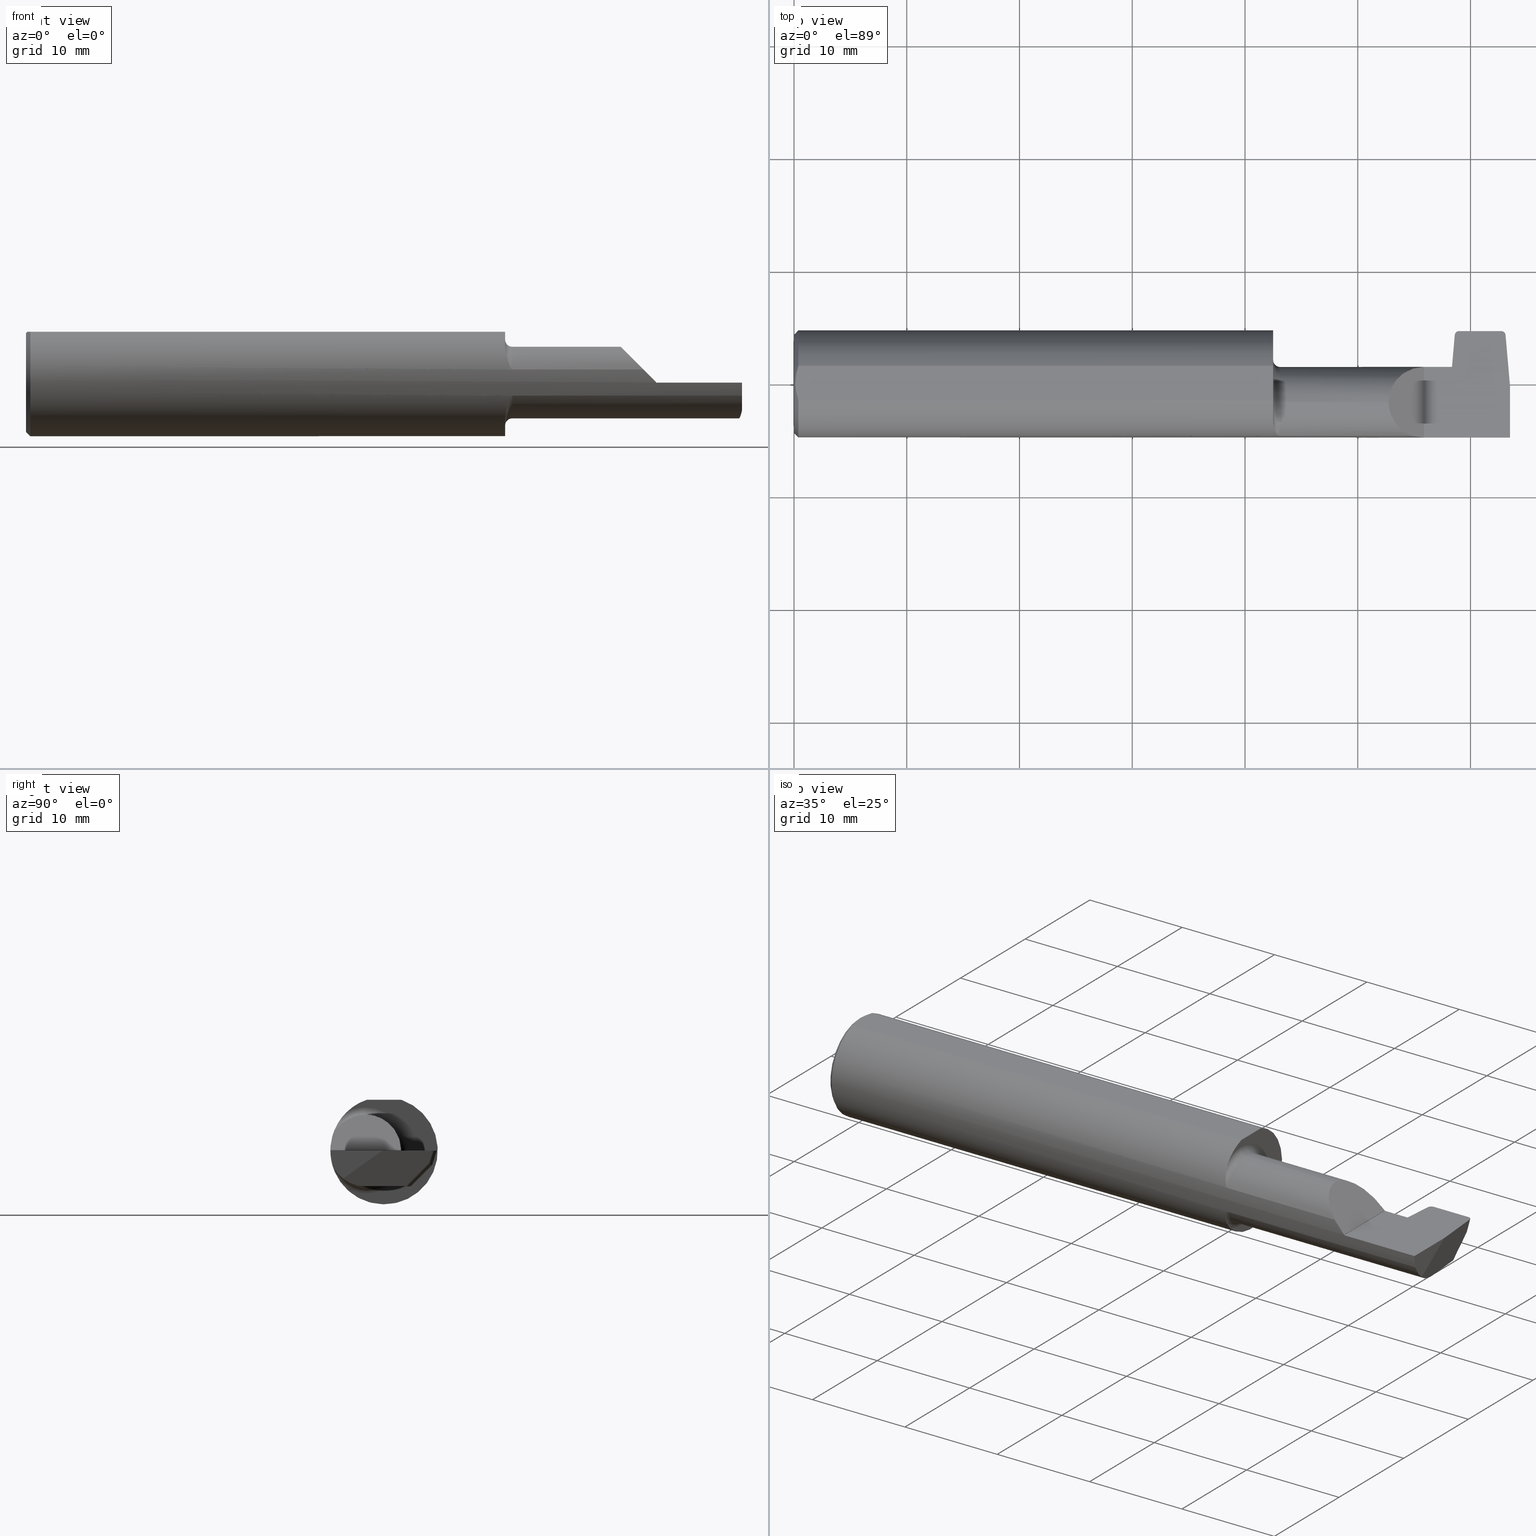
[diagram: canonical four-view strip — front | top / right | iso, engineering-drawing reading convention]
A machine part, canonical four-view strip (front | top / right | iso — engineering-drawing reading convention). The complete STEP part file that produces these views, byte-faithful:
ISO-10303-21;
HEADER;
FILE_DESCRIPTION (( 'STEP AP203' ),
    '1' );
FILE_NAME ('224828-GOR174-12.STEP',
    '2024-07-08T17:49:37',
    ( '' ),
    ( '' ),
    'SwSTEP 2.0',
    'SolidWorks 2024',
    '' );
FILE_SCHEMA (( 'CONFIG_CONTROL_DESIGN' ));
ENDSEC;

DATA;
#1 = EDGE_LOOP ( 'NONE', ( #652, #953, #44, #537, #942, #871, #580 ) ) ;
#2 = PERSON_AND_ORGANIZATION ( #308, #902 ) ;
#3 = EDGE_LOOP ( 'NONE', ( #225, #673, #707, #447 ) ) ;
#4 = DIRECTION ( 'NONE',  ( -1.000000000000000000, -0.000000000000000000, -0.000000000000000000 ) ) ;
#5 = DIRECTION ( 'NONE',  ( 0.000000000000000000, 0.000000000000000000, -1.000000000000000000 ) ) ;
#6 = VECTOR ( 'NONE', #84, 39.37007874015748143 ) ;
#7 = CARTESIAN_POINT ( 'NONE',  ( 1.985000000000000320, -0.1816805279265493456, -0.04574066322573741572 ) ) ;
#8 = APPROVAL_STATUS ( 'not_yet_approved' ) ;
#9 = ORIENTED_EDGE ( 'NONE', *, *, #556, .T. ) ;
#10 = FACE_OUTER_BOUND ( 'NONE', #137, .T. ) ;
#11 = FACE_OUTER_BOUND ( 'NONE', #1, .T. ) ;
#12 = VECTOR ( 'NONE', #886, 39.37007874015748143 ) ;
#13 = DIRECTION ( 'NONE',  ( -0.02528153024484489433, -0.7068807693764397326, -0.7068807693764569411 ) ) ;
#14 = ORIENTED_EDGE ( 'NONE', *, *, #882, .T. ) ;
#15 = CARTESIAN_POINT ( 'NONE',  ( 1.687714244929360730, -0.1775741566219413425, -0.05988189962716809756 ) ) ;
#16 = DIRECTION ( 'NONE',  ( 0.000000000000000000, 0.000000000000000000, -1.000000000000000000 ) ) ;
#17 = VERTEX_POINT ( 'NONE', #591 ) ;
#18 = DIRECTION ( 'NONE',  ( 0.000000000000000000, 0.000000000000000000, -1.000000000000000000 ) ) ;
#19 = FACE_OUTER_BOUND ( 'NONE', #429, .T. ) ;
#20 = DIRECTION ( 'NONE',  ( 1.000000000000000000, 0.000000000000000000, 0.000000000000000000 ) ) ;
#21 = ADVANCED_FACE ( 'NONE', ( #907 ), #966, .T. ) ;
#22 = ORIENTED_EDGE ( 'NONE', *, *, #858, .T. ) ;
#23 = CARTESIAN_POINT ( 'NONE',  ( 2.318300646411421972, 0.1679694887219939647, -0.05062163677496127334 ) ) ;
#24 = CARTESIAN_POINT ( 'NONE',  ( 0.000000000000000000, 0.000000000000000000, 0.000000000000000000 ) ) ;
#25 = CARTESIAN_POINT ( 'NONE',  ( 1.697999999999999954, -0.06535000000000003306, 0.1249999999999999584 ) ) ;
#26 = ORIENTED_EDGE ( 'NONE', *, *, #135, .T. ) ;
#27 = CARTESIAN_POINT ( 'NONE',  ( 2.500000000000000000, 0.2000000000000000111, -3.979970649922726459E-17 ) ) ;
#28 = EDGE_CURVE ( 'NONE', #425, #632, #754, .T. ) ;
#29 = CARTESIAN_POINT ( 'NONE',  ( 2.200000000000000178, 0.05964270978741119389, 0.001349999999999188004 ) ) ;
#30 = VERTEX_POINT ( 'NONE', #915 ) ;
#31 = LINE ( 'NONE', #27, #104 ) ;
#32 = PLANE ( 'NONE',  #746 ) ;
#33 = EDGE_CURVE ( 'NONE', #304, #85, #212, .T. ) ;
#34 = ADVANCED_FACE ( 'NONE', ( #136 ), #218, .F. ) ;
#35 = VERTEX_POINT ( 'NONE', #842 ) ;
#36 = CARTESIAN_POINT ( 'NONE',  ( 2.076349999999999252, -0.06535000000000003306, 0.1249999999999999584 ) ) ;
#37 = FACE_OUTER_BOUND ( 'NONE', #603, .T. ) ;
#38 = VECTOR ( 'NONE', #817, 39.37007874015748143 ) ;
#39 = VERTEX_POINT ( 'NONE', #161 ) ;
#40 = DIRECTION ( 'NONE',  ( 0.000000000000000000, 0.000000000000000000, 1.000000000000000000 ) ) ;
#41 = VECTOR ( 'NONE', #159, 39.37007874015748854 ) ;
#42 = VERTEX_POINT ( 'NONE', #969 ) ;
#43 = DIRECTION ( 'NONE',  ( 0.000000000000000000, 0.000000000000000000, 1.000000000000000000 ) ) ;
#44 = ORIENTED_EDGE ( 'NONE', *, *, #631, .T. ) ;
#45 = DIRECTION ( 'NONE',  ( 1.000000000000000000, -0.000000000000000000, -0.000000000000000000 ) ) ;
#46 = ADVANCED_FACE ( 'NONE', ( #473 ), #392, .F. ) ;
#47 = AXIS2_PLACEMENT_3D ( 'NONE', #698, #151, #941 ) ;
#48 = VECTOR ( 'NONE', #108, 39.37007874015748143 ) ;
#49 = EDGE_LOOP ( 'NONE', ( #249, #929, #244, #203, #459 ) ) ;
#50 = CARTESIAN_POINT ( 'NONE',  ( 1.695736562170379491, -0.1815122776378731151, 0.04641090218153610947 ) ) ;
#51 = APPROVAL_PERSON_ORGANIZATION ( #465, #189, #538 ) ;
#52 = CARTESIAN_POINT ( 'NONE',  ( 2.473453661448729246, 0.1679694887219933541, -0.05062163677496187703 ) ) ;
#53 = EDGE_CURVE ( 'NONE', #530, #741, #624, .T. ) ;
#54 = CC_DESIGN_PERSON_AND_ORGANIZATION_ASSIGNMENT ( #57, #289, ( #946 ) ) ;
#55 = DIRECTION ( 'NONE',  ( -1.000000000000000000, -0.000000000000000000, -0.000000000000000000 ) ) ;
#56 = CARTESIAN_POINT ( 'NONE',  ( 2.330394777449626087, 0.1549540819010946924, -0.09139463825430929611 ) ) ;
#57 = PERSON_AND_ORGANIZATION ( #308, #902 ) ;
#58 =( BOUNDED_CURVE ( )  B_SPLINE_CURVE ( 3, ( #659, #52, #588, #353 ),
 .UNSPECIFIED., .F., .T. ) 
 B_SPLINE_CURVE_WITH_KNOTS ( ( 4, 4 ),
 ( 0.1478821064332816460, 1.570796326794896336 ),
 .UNSPECIFIED. ) 
 CURVE ( )  GEOMETRIC_REPRESENTATION_ITEM ( )  RATIONAL_B_SPLINE_CURVE ( ( 1.000000000000000000, 0.8382741850914495751, 0.8382741850914495751, 1.000000000000000000 ) ) 
 REPRESENTATION_ITEM ( '' )  );
#59 = CYLINDRICAL_SURFACE ( 'NONE', #733, 0.01499999999999999424 ) ;
#60 = EDGE_CURVE ( 'NONE', #551, #63, #332, .T. ) ;
#61 = EDGE_CURVE ( 'NONE', #163, #865, #557, .T. ) ;
#62 = CARTESIAN_POINT ( 'NONE',  ( 2.200000000000000178, 0.2000000000000000111, -3.979970649922726459E-17 ) ) ;
#63 = VERTEX_POINT ( 'NONE', #937 ) ;
#64 = PERSON_AND_ORGANIZATION ( #308, #902 ) ;
#65 = EDGE_CURVE ( 'NONE', #799, #783, #734, .T. ) ;
#66 = ORIENTED_EDGE ( 'NONE', *, *, #306, .F. ) ;
#67 = CARTESIAN_POINT ( 'NONE',  ( 2.328752348163907637, 0.09359112549695697281, -0.1249999999999999861 ) ) ;
#68 = DIRECTION ( 'NONE',  ( 0.000000000000000000, 0.000000000000000000, 1.000000000000000000 ) ) ;
#69 = ORIENTED_EDGE ( 'NONE', *, *, #515, .F. ) ;
#70 = APPLICATION_PROTOCOL_DEFINITION ( 'international standard', 'config_control_design', 1994, #150 ) ;
#71 = VERTEX_POINT ( 'NONE', #409 ) ;
#72 = DIRECTION ( 'NONE',  ( -1.000000000000000000, 0.000000000000000000, 0.000000000000000000 ) ) ;
#73 = VECTOR ( 'NONE', #827, 39.37007874015748143 ) ;
#74 = CARTESIAN_POINT ( 'NONE',  ( 2.200000000000000178, -0.1873499999999999888, -3.979970649922726459E-17 ) ) ;
#75 = ORIENTED_EDGE ( 'NONE', *, *, #301, .F. ) ;
#76 = PERSON_AND_ORGANIZATION_ROLE ( 'creator' ) ;
#77 = EDGE_LOOP ( 'NONE', ( #174, #362, #927, #270, #826, #535 ) ) ;
#78 = CARTESIAN_POINT ( 'NONE',  ( 0.01499999999999970281, 0.000000000000000000, 0.000000000000000000 ) ) ;
#79 = CARTESIAN_POINT ( 'NONE',  ( 2.326495739765625181, 0.1683139580139821623, -0.05027716748297291621 ) ) ;
#80 = MECHANICAL_CONTEXT ( 'NONE', #150, 'mechanical' ) ;
#81 = ORIENTED_EDGE ( 'NONE', *, *, #813, .T. ) ;
#82 = CARTESIAN_POINT ( 'NONE',  ( 2.303416388597084197, -0.04815116256726045818, -0.1249999999999999861 ) ) ;
#83 = CARTESIAN_POINT ( 'NONE',  ( 1.673000000000000265, 0.1000000000000000056, 0.1773499999999999799 ) ) ;
#84 = DIRECTION ( 'NONE',  ( 0.000000000000000000, -1.000000000000000000, 0.000000000000000000 ) ) ;
#85 = VERTEX_POINT ( 'NONE', #773 ) ;
#86 = DIRECTION ( 'NONE',  ( 0.000000000000000000, 0.000000000000000000, 1.000000000000000000 ) ) ;
#87 = VECTOR ( 'NONE', #327, 39.37007874015748143 ) ;
#88 =( BOUNDED_CURVE ( )  B_SPLINE_CURVE ( 3, ( #794, #322, #889, #955 ),
 .UNSPECIFIED., .F., .T. ) 
 B_SPLINE_CURVE_WITH_KNOTS ( ( 4, 4 ),
 ( 1.960722919233728767, 3.411297973623211632 ),
 .UNSPECIFIED. ) 
 CURVE ( )  GEOMETRIC_REPRESENTATION_ITEM ( )  RATIONAL_B_SPLINE_CURVE ( ( 1.000000000000000000, 0.8322058143701998034, 0.8322058143701998034, 1.000000000000000000 ) ) 
 REPRESENTATION_ITEM ( '' )  );
#89 = AXIS2_PLACEMENT_3D ( 'NONE', #114, #268, #750 ) ;
#90 = CIRCLE ( 'NONE', #47, 0.1249999999999999584 ) ;
#91 = CARTESIAN_POINT ( 'NONE',  ( 1.697999999999999954, -0.06535000000000003306, 0.000000000000000000 ) ) ;
#92 = EDGE_LOOP ( 'NONE', ( #736, #853, #539, #393, #504 ) ) ;
#93 = FACE_OUTER_BOUND ( 'NONE', #303, .T. ) ;
#94 =( BOUNDED_CURVE ( )  B_SPLINE_CURVE ( 3, ( #947, #354, #820, #584 ),
 .UNSPECIFIED., .F., .T. ) 
 B_SPLINE_CURVE_WITH_KNOTS ( ( 4, 4 ),
 ( 1.326450231515688083, 1.570796326794896780 ),
 .UNSPECIFIED. ) 
 CURVE ( )  GEOMETRIC_REPRESENTATION_ITEM ( )  RATIONAL_B_SPLINE_CURVE ( ( 1.000000000000000000, 0.9950307677608811741, 0.9950307677608811741, 1.000000000000000000 ) ) 
 REPRESENTATION_ITEM ( '' )  );
#95 = LINE ( 'NONE', #780, #437 ) ;
#96 = ORIENTED_EDGE ( 'NONE', *, *, #152, .T. ) ;
#97 = CARTESIAN_POINT ( 'NONE',  ( 2.326080212090127386, 0.1683050207959842504, -0.05028610470097082119 ) ) ;
#98 = FACE_OUTER_BOUND ( 'NONE', #611, .T. ) ;
#99 = CARTESIAN_POINT ( 'NONE',  ( 2.326356869862351573, 0.1683139580139821623, -0.05027716748297295785 ) ) ;
#100 = AXIS2_PLACEMENT_3D ( 'NONE', #62, #595, #191 ) ;
#101 = VERTEX_POINT ( 'NONE', #309 ) ;
#102 = CARTESIAN_POINT ( 'NONE',  ( 0.000000000000000000, 0.000000000000000000, -0.1723500000000004195 ) ) ;
#103 = DIRECTION ( 'NONE',  ( 0.000000000000000000, 0.000000000000000000, -1.000000000000000000 ) ) ;
#104 = VECTOR ( 'NONE', #880, 39.37007874015748143 ) ;
#105 = VECTOR ( 'NONE', #468, 39.37007874015748854 ) ;
#106 = EDGE_LOOP ( 'NONE', ( #900, #957, #678, #990, #597, #153 ) ) ;
#107 = DIRECTION ( 'NONE',  ( 1.000000000000000000, -0.000000000000000000, -0.000000000000000000 ) ) ;
#108 = DIRECTION ( 'NONE',  ( 0.7071067811865507924, 0.000000000000000000, -0.7071067811865443531 ) ) ;
#109 = ORIENTED_EDGE ( 'NONE', *, *, #157, .F. ) ;
#110 = LINE ( 'NONE', #509, #148 ) ;
#111 = AXIS2_PLACEMENT_3D ( 'NONE', #383, #68, #315 ) ;
#112 = ORIENTED_EDGE ( 'NONE', *, *, #28, .F. ) ;
#113 = CARTESIAN_POINT ( 'NONE',  ( 1.680165066739708779, -0.1674210122097407327, 0.08457025362359742171 ) ) ;
#114 = CARTESIAN_POINT ( 'NONE',  ( 1.673000000000000265, -0.06535000000000003306, 0.000000000000000000 ) ) ;
#115 = DIRECTION ( 'NONE',  ( -1.000000000000000000, -0.000000000000000000, -0.000000000000000000 ) ) ;
#116 = AXIS2_PLACEMENT_3D ( 'NONE', #245, #407, #563 ) ;
#117 = ORIENTED_EDGE ( 'NONE', *, *, #210, .F. ) ;
#118 = CARTESIAN_POINT ( 'NONE',  ( 1.687714394919973104, -0.1775724809961185535, 0.05988543762226174877 ) ) ;
#119 = CYLINDRICAL_SURFACE ( 'NONE', #361, 0.1249999999999999584 ) ;
#120 = EDGE_CURVE ( 'NONE', #63, #635, #398, .T. ) ;
#121 = VERTEX_POINT ( 'NONE', #25 ) ;
#122 = CARTESIAN_POINT ( 'NONE',  ( 2.311504986094757630, -0.06535000000000003306, 0.000000000000000000 ) ) ;
#123 = CARTESIAN_POINT ( 'NONE',  ( 1.673000000000000265, -0.06535000000000003306, -0.1499999999999999667 ) ) ;
#124 = EDGE_CURVE ( 'NONE', #492, #85, #90, .T. ) ;
#125 = VERTEX_POINT ( 'NONE', #169 ) ;
#126 = CARTESIAN_POINT ( 'NONE',  ( 1.697999999999999954, -0.1816805279265493456, 0.04574066322573741572 ) ) ;
#127 = ADVANCED_BREP_SHAPE_REPRESENTATION ( '224828-GOR174-12', ( #186, #279 ), #769 ) ;
#128 = CARTESIAN_POINT ( 'NONE',  ( 1.673000000000000265, 0.000000000000000000, 0.000000000000000000 ) ) ;
#129 = EDGE_LOOP ( 'NONE', ( #285, #682, #626, #516, #676, #280 ) ) ;
#130 = CALENDAR_DATE ( 2024, 8, 7 ) ;
#131 = EDGE_CURVE ( 'NONE', #586, #948, #868, .T. ) ;
#132 = VECTOR ( 'NONE', #389, 39.37007874015748854 ) ;
#133 = DIRECTION ( 'NONE',  ( -2.165595157143905634E-16, -0.7071067811865561215, 0.7071067811865389130 ) ) ;
#134 = LINE ( 'NONE', #278, #977 ) ;
#135 = EDGE_CURVE ( 'NONE', #492, #125, #961, .T. ) ;
#136 = FACE_OUTER_BOUND ( 'NONE', #255, .T. ) ;
#137 = EDGE_LOOP ( 'NONE', ( #233, #261, #81, #748 ) ) ;
#138 = LINE ( 'NONE', #757, #572 ) ;
#139 = CARTESIAN_POINT ( 'NONE',  ( 1.673000000000000265, -0.06535000000000003306, 0.000000000000000000 ) ) ;
#140 = ORIENTED_EDGE ( 'NONE', *, *, #863, .F. ) ;
#141 = PERSON_AND_ORGANIZATION ( #308, #902 ) ;
#142 = VERTEX_POINT ( 'NONE', #469 ) ;
#143 = CYLINDRICAL_SURFACE ( 'NONE', #887, 0.01499999999999999424 ) ;
#144 = LINE ( 'NONE', #1005, #758 ) ;
#145 = ORIENTED_EDGE ( 'NONE', *, *, #705, .T. ) ;
#146 = COORDINATED_UNIVERSAL_TIME_OFFSET ( 8, 0, .BEHIND. ) ;
#147 = DIRECTION ( 'NONE',  ( -1.000000000000000000, -0.000000000000000000, -0.000000000000000000 ) ) ;
#148 = VECTOR ( 'NONE', #587, 39.37007874015748143 ) ;
#149 = LINE ( 'NONE', #545, #628 ) ;
#150 = APPLICATION_CONTEXT ( 'configuration controlled 3d designs of mechanical parts and assemblies' ) ;
#151 = DIRECTION ( 'NONE',  ( -1.000000000000000000, -0.000000000000000000, -0.000000000000000000 ) ) ;
#152 = EDGE_CURVE ( 'NONE', #101, #425, #890, .T. ) ;
#153 = ORIENTED_EDGE ( 'NONE', *, *, #301, .T. ) ;
#154 = CARTESIAN_POINT ( 'NONE',  ( 2.311339426728680202, 0.1564585279735821455, -0.04404502569471820117 ) ) ;
#155 = DIRECTION ( 'NONE',  ( -1.000000000000000000, -0.000000000000000000, -0.000000000000000000 ) ) ;
#156 = DIRECTION ( 'NONE',  ( 1.000000000000000000, 0.000000000000000000, 0.000000000000000000 ) ) ;
#157 = EDGE_CURVE ( 'NONE', #642, #645, #95, .T. ) ;
#158 = ORIENTED_EDGE ( 'NONE', *, *, #124, .F. ) ;
#159 = DIRECTION ( 'NONE',  ( 0.08715574274765251761, 0.9961946980917459893, -0.000000000000000000 ) ) ;
#160 =( BOUNDED_CURVE ( )  B_SPLINE_CURVE ( 3, ( #412, #394, #23, #97 ),
 .UNSPECIFIED., .F., .T. ) 
 B_SPLINE_CURVE_WITH_KNOTS ( ( 4, 4 ),
 ( 1.570796326794897224, 2.993710547156527735 ),
 .UNSPECIFIED. ) 
 CURVE ( )  GEOMETRIC_REPRESENTATION_ITEM ( )  RATIONAL_B_SPLINE_CURVE ( ( 1.000000000000000000, 0.8382741850914463555, 0.8382741850914463555, 1.000000000000000000 ) ) 
 REPRESENTATION_ITEM ( '' )  );
#161 = CARTESIAN_POINT ( 'NONE',  ( 2.470026190396761301, 0.1846500000000000086, -3.979970649922726459E-17 ) ) ;
#162 = EDGE_CURVE ( 'NONE', #17, #838, #464, .T. ) ;
#163 = VERTEX_POINT ( 'NONE', #405 ) ;
#164 = CARTESIAN_POINT ( 'NONE',  ( 1.694060832777569248, -0.1811109074190623835, -0.04795319073302588969 ) ) ;
#165 = EDGE_CURVE ( 'NONE', #492, #567, #550, .T. ) ;
#166 = CARTESIAN_POINT ( 'NONE',  ( 0.004999999999999614995, -0.02074845265125293409, 0.1773499999999999799 ) ) ;
#167 = VECTOR ( 'NONE', #706, 39.37007874015748143 ) ;
#168 = EDGE_CURVE ( 'NONE', #208, #551, #747, .T. ) ;
#169 = CARTESIAN_POINT ( 'NONE',  ( 2.076349999999999252, -0.06535000000000003306, 0.1249999999999999584 ) ) ;
#170 = EDGE_LOOP ( 'NONE', ( #831, #521, #9, #325 ) ) ;
#171 = DIRECTION ( 'NONE',  ( 0.000000000000000000, -0.8154497401906277698, -0.5788278856646746906 ) ) ;
#172 = CARTESIAN_POINT ( 'NONE',  ( 1.673000000000000265, -0.06535000000000003306, 0.000000000000000000 ) ) ;
#173 = DIRECTION ( 'NONE',  ( 1.000000000000000000, 0.000000000000000000, 0.000000000000000000 ) ) ;
#174 = ORIENTED_EDGE ( 'NONE', *, *, #157, .T. ) ;
#175 = CARTESIAN_POINT ( 'NONE',  ( 2.296441070989335920, 0.05964999999999992530, 0.000000000000000000 ) ) ;
#176 = CARTESIAN_POINT ( 'NONE',  ( 2.296441070989335920, 0.05964999999999992530, 0.000000000000000000 ) ) ;
#177 = AXIS2_PLACEMENT_3D ( 'NONE', #196, #397, #703 ) ;
#178 = ORIENTED_EDGE ( 'NONE', *, *, #418, .T. ) ;
#179 = LINE ( 'NONE', #259, #511 ) ;
#180 = DIRECTION ( 'NONE',  ( -1.000000000000000000, 0.000000000000000000, -0.000000000000000000 ) ) ;
#181 = CIRCLE ( 'NONE', #884, 0.1499999999999999667 ) ;
#182 = AXIS2_PLACEMENT_3D ( 'NONE', #536, #762, #850 ) ;
#183 = ORIENTED_EDGE ( 'NONE', *, *, #956, .T. ) ;
#184 = DIRECTION ( 'NONE',  ( 0.000000000000000000, 0.000000000000000000, -1.000000000000000000 ) ) ;
#185 = DIRECTION ( 'NONE',  ( -1.000000000000000000, -0.000000000000000000, -0.000000000000000000 ) ) ;
#186 = MANIFOLD_SOLID_BREP ( 'Fillet1', #604 ) ;
#187 = EDGE_LOOP ( 'NONE', ( #847, #508, #541 ) ) ;
#188 = CARTESIAN_POINT ( 'NONE',  ( 2.311504986094757630, 0.05593696578449948442, -0.03024023694995846973 ) ) ;
#189 = APPROVAL ( #8, 'UNSPECIFIED' ) ;
#190 = DIRECTION ( 'NONE',  ( 0.000000000000000000, 0.000000000000000000, -1.000000000000000000 ) ) ;
#191 = DIRECTION ( 'NONE',  ( -1.000000000000000000, 0.000000000000000000, 0.000000000000000000 ) ) ;
#192 = ORIENTED_EDGE ( 'NONE', *, *, #688, .F. ) ;
#193 = CARTESIAN_POINT ( 'NONE',  ( 2.106227264736975080, -0.1622637096011580737, 0.09512273526302454651 ) ) ;
#194 = CARTESIAN_POINT ( 'NONE',  ( 2.477519533400941221, 0.07550355366830234505, -0.1249999999999999861 ) ) ;
#195 = EDGE_CURVE ( 'NONE', #71, #693, #94, .T. ) ;
#196 = CARTESIAN_POINT ( 'NONE',  ( 2.459604800360843502, 0.1346757310789176987, -0.1052639650782914577 ) ) ;
#197 = AXIS2_PLACEMENT_3D ( 'NONE', #276, #667, #184 ) ;
#198 = ORIENTED_EDGE ( 'NONE', *, *, #484, .T. ) ;
#199 = CARTESIAN_POINT ( 'NONE',  ( 2.489842622564257368, -0.06535000000000003306, -0.1249999999999999861 ) ) ;
#200 = DIRECTION ( 'NONE',  ( 0.000000000000000000, 0.000000000000000000, -1.000000000000000000 ) ) ;
#201 = LINE ( 'NONE', #978, #307 ) ;
#202 = EDGE_CURVE ( 'NONE', #922, #660, #672, .T. ) ;
#203 = ORIENTED_EDGE ( 'NONE', *, *, #775, .F. ) ;
#204 = CARTESIAN_POINT ( 'NONE',  ( 2.312273481517280516, 0.1303420167809792030, -0.07016153688732172655 ) ) ;
#205 = LINE ( 'NONE', #579, #235 ) ;
#206 = EDGE_CURVE ( 'NONE', #660, #101, #201, .T. ) ;
#207 = ORIENTED_EDGE ( 'NONE', *, *, #321, .F. ) ;
#208 = VERTEX_POINT ( 'NONE', #895 ) ;
#209 = CARTESIAN_POINT ( 'NONE',  ( 2.155609336774261919, -0.1816805279265492068, 0.04574066322573761695 ) ) ;
#210 = EDGE_CURVE ( 'NONE', #741, #635, #287, .T. ) ;
#211 = CARTESIAN_POINT ( 'NONE',  ( 2.328752348163907637, 0.09359112549695697281, -0.1249999999999999861 ) ) ;
#212 = LINE ( 'NONE', #526, #265 ) ;
#213 = SECURITY_CLASSIFICATION_LEVEL ( 'unclassified' ) ;
#214 = TOROIDAL_SURFACE ( 'NONE', #395, 0.1499999999999999667, 0.02500000000000000139 ) ;
#215 = EDGE_LOOP ( 'NONE', ( #885, #849, #411, #350 ) ) ;
#216 = CIRCLE ( 'NONE', #314, 0.1873499999999999888 ) ;
#217 = CARTESIAN_POINT ( 'NONE',  ( 2.489919779257633081, -0.06623190504079595753, -0.1249999999999999861 ) ) ;
#218 = TOROIDAL_SURFACE ( 'NONE', #870, 0.1499999999999999667, 0.02500000000000000139 ) ;
#219 = CARTESIAN_POINT ( 'NONE',  ( 2.492339414901687533, -0.09388846700596117922, -0.1250000000000000000 ) ) ;
#220 = ORIENTED_EDGE ( 'NONE', *, *, #28, .T. ) ;
#221 =( LENGTH_UNIT ( ) NAMED_UNIT ( * ) SI_UNIT ( $, .METRE. ) );
#222 = VERTEX_POINT ( 'NONE', #519 ) ;
#223 = CARTESIAN_POINT ( 'NONE',  ( 2.307162778414596715, 0.1707696243428799832, 0.000000000000000000 ) ) ;
#224 = LINE ( 'NONE', #83, #358 ) ;
#225 = ORIENTED_EDGE ( 'NONE', *, *, #825, .F. ) ;
#226 = APPROVAL_DATE_TIME ( #385, #189 ) ;
#227 = ORIENTED_EDGE ( 'NONE', *, *, #195, .T. ) ;
#228 = FACE_OUTER_BOUND ( 'NONE', #456, .T. ) ;
#229 = DIRECTION ( 'NONE',  ( 0.000000000000000000, 0.000000000000000000, 1.000000000000000000 ) ) ;
#230 = VECTOR ( 'NONE', #689, 39.37007874015748854 ) ;
#231 = EDGE_CURVE ( 'NONE', #163, #377, #743, .T. ) ;
#232 = ORIENTED_EDGE ( 'NONE', *, *, #596, .F. ) ;
#233 = ORIENTED_EDGE ( 'NONE', *, *, #202, .F. ) ;
#234 = CARTESIAN_POINT ( 'NONE',  ( 2.500000000000000000, -0.1873499999999999610, -3.979970649922724610E-17 ) ) ;
#235 = VECTOR ( 'NONE', #899, 39.37007874015748143 ) ;
#236 = CARTESIAN_POINT ( 'NONE',  ( 2.489842622564257368, -0.06535000000000003306, -0.1249999999999999861 ) ) ;
#237 = EDGE_CURVE ( 'NONE', #125, #121, #134, .T. ) ;
#238 = CARTESIAN_POINT ( 'NONE',  ( 2.326218351805394935, 0.1683109787513610289, -0.05028014674559410507 ) ) ;
#239 = EDGE_LOOP ( 'NONE', ( #436, #470, #96, #543, #374, #599 ) ) ;
#240 = CARTESIAN_POINT ( 'NONE',  ( 2.484965441901290539, 0.1720508184452588241, 0.003943109996817505472 ) ) ;
#241 = ADVANCED_FACE ( 'NONE', ( #984 ), #366, .F. ) ;
#242 = CARTESIAN_POINT ( 'NONE',  ( 2.200000000000000178, 0.05964270978741119389, 0.001349999999999188004 ) ) ;
#243 = ADVANCED_FACE ( 'NONE', ( #507 ), #274, .T. ) ;
#244 = ORIENTED_EDGE ( 'NONE', *, *, #378, .T. ) ;
#245 = CARTESIAN_POINT ( 'NONE',  ( 2.311504986094757630, 0.05593696578449948442, -0.03024023694995846973 ) ) ;
#246 = LINE ( 'NONE', #176, #87 ) ;
#247 = EDGE_CURVE ( 'NONE', #512, #642, #787, .T. ) ;
#248 = DIRECTION ( 'NONE',  ( 0.000000000000000000, 0.000000000000000000, -1.000000000000000000 ) ) ;
#249 = ORIENTED_EDGE ( 'NONE', *, *, #589, .F. ) ;
#250 = CARTESIAN_POINT ( 'NONE',  ( 2.287128570000000582, 0.1683139580139821623, -0.05027716748297293009 ) ) ;
#251 = DIRECTION ( 'NONE',  ( -0.9887692138764513361, -0.08650609705762295210, 0.1218693434051477814 ) ) ;
#252 = CIRCLE ( 'NONE', #476, 0.02500000000000000486 ) ;
#253 = AXIS2_PLACEMENT_3D ( 'NONE', #257, #877, #422 ) ;
#254 = CARTESIAN_POINT ( 'NONE',  ( 2.311504986094757630, 0.04430192988713683305, -0.1249999999999999861 ) ) ;
#255 = EDGE_LOOP ( 'NONE', ( #192, #979, #367, #639 ) ) ;
#256 = CARTESIAN_POINT ( 'NONE',  ( 2.484591529445554503, 0.1707696243428800109, 0.000000000000000000 ) ) ;
#257 = CARTESIAN_POINT ( 'NONE',  ( 2.500000000000000000, 0.000000000000000000, 0.000000000000000000 ) ) ;
#258 = ORIENTED_EDGE ( 'NONE', *, *, #165, .F. ) ;
#259 = CARTESIAN_POINT ( 'NONE',  ( 1.985000000000000320, -0.1816805279265493456, 0.04574066322573741572 ) ) ;
#260 = DIRECTION ( 'NONE',  ( -0.000000000000000000, 0.000000000000000000, 1.000000000000000000 ) ) ;
#261 = ORIENTED_EDGE ( 'NONE', *, *, #989, .F. ) ;
#262 = CARTESIAN_POINT ( 'NONE',  ( 1.686243155597560328, -0.1761103983034254528, -0.06406878988066036507 ) ) ;
#263 = DIRECTION ( 'NONE',  ( 0.1223279114424238589, 0.000000000000000000, 0.9924897390311572254 ) ) ;
#264 = CC_DESIGN_SECURITY_CLASSIFICATION ( #789, ( #946 ) ) ;
#265 = VECTOR ( 'NONE', #836, 39.37007874015748143 ) ;
#266 = ORIENTED_EDGE ( 'NONE', *, *, #269, .F. ) ;
#267 = DIRECTION ( 'NONE',  ( -0.9925461516413219831, 0.000000000000000000, 0.1218693434051477398 ) ) ;
#268 = DIRECTION ( 'NONE',  ( -1.000000000000000000, -0.000000000000000000, -0.000000000000000000 ) ) ;
#269 = EDGE_CURVE ( 'NONE', #986, #741, #768, .T. ) ;
#270 = ORIENTED_EDGE ( 'NONE', *, *, #341, .T. ) ;
#271 = CARTESIAN_POINT ( 'NONE',  ( 1.686238439611428275, -0.1761054551189536743, 0.06408236932159687427 ) ) ;
#272 = AXIS2_PLACEMENT_3D ( 'NONE', #615, #856, #779 ) ;
#273 = CARTESIAN_POINT ( 'NONE',  ( 2.321728117463390362, 0.1846500000000000086, -3.979970649922726459E-17 ) ) ;
#274 = CYLINDRICAL_SURFACE ( 'NONE', #177, 0.01499999999999999944 ) ;
#275 = ORIENTED_EDGE ( 'NONE', *, *, #410, .F. ) ;
#276 = CARTESIAN_POINT ( 'NONE',  ( 1.673000000000000265, 0.000000000000000000, 0.000000000000000000 ) ) ;
#277 = CARTESIAN_POINT ( 'NONE',  ( 2.313724774796122485, 0.1846499999999999808, -5.122214988120493535E-17 ) ) ;
#278 = CARTESIAN_POINT ( 'NONE',  ( 1.673000000000000265, -0.06535000000000003306, 0.1249999999999999584 ) ) ;
#279 = AXIS2_PLACEMENT_3D ( 'NONE', #368, #298, #691 ) ;
#280 = ORIENTED_EDGE ( 'NONE', *, *, #306, .T. ) ;
#281 = CARTESIAN_POINT ( 'NONE',  ( 1.673000000000000265, 0.05964999999999991837, -3.979970649922724610E-17 ) ) ;
#282 = CARTESIAN_POINT ( 'NONE',  ( 1.697999999999999954, -0.06535000000000003306, 0.000000000000000000 ) ) ;
#283 = ORIENTED_EDGE ( 'NONE', *, *, #162, .F. ) ;
#284 = PLANE ( 'NONE',  #495 ) ;
#285 = ORIENTED_EDGE ( 'NONE', *, *, #631, .F. ) ;
#286 = CARTESIAN_POINT ( 'NONE',  ( 2.465674095770024277, 0.1683050207959842226, -0.05028610470097082813 ) ) ;
#287 = LINE ( 'NONE', #671, #390 ) ;
#288 = EDGE_LOOP ( 'NONE', ( #388, #183, #777, #337 ) ) ;
#289 = PERSON_AND_ORGANIZATION_ROLE ( 'design_supplier' ) ;
#290 = DIRECTION ( 'NONE',  ( 0.000000000000000000, -0.7071067811865560104, 0.7071067811865390240 ) ) ;
#291 = DIRECTION ( 'NONE',  ( -0.02528153024484444331, 0.7068807693764397326, 0.7068807693764569411 ) ) ;
#292 = ORIENTED_EDGE ( 'NONE', *, *, #135, .F. ) ;
#293 = COORDINATED_UNIVERSAL_TIME_OFFSET ( 8, 0, .BEHIND. ) ;
#294 = AXIS2_PLACEMENT_3D ( 'NONE', #983, #133, #744 ) ;
#295 = DIRECTION ( 'NONE',  ( 0.000000000000000000, 0.7071067811865560104, -0.7071067811865390240 ) ) ;
#296 = PLANE ( 'NONE',  #647 ) ;
#297 = ORIENTED_EDGE ( 'NONE', *, *, #124, .T. ) ;
#298 = DIRECTION ( 'NONE',  ( 0.000000000000000000, 0.000000000000000000, 1.000000000000000000 ) ) ;
#299 = ORIENTED_EDGE ( 'NONE', *, *, #815, .T. ) ;
#300 = PLANE ( 'NONE',  #699 ) ;
#301 = EDGE_CURVE ( 'NONE', #865, #17, #224, .T. ) ;
#302 = FACE_OUTER_BOUND ( 'NONE', #170, .T. ) ;
#303 = EDGE_LOOP ( 'NONE', ( #879, #963, #577 ) ) ;
#304 = VERTEX_POINT ( 'NONE', #74 ) ;
#305 = CARTESIAN_POINT ( 'NONE',  ( 2.296441070989335920, 0.05964999999999992530, 0.000000000000000000 ) ) ;
#306 = EDGE_CURVE ( 'NONE', #222, #986, #917, .T. ) ;
#307 = VECTOR ( 'NONE', #291, 39.37007874015748143 ) ;
#308 = PERSON ( 'UNSPECIFIED', 'UNSPECIFIED', 'UNSPECIFIED', ('UNSPECIFIED'), ('UNSPECIFIED'), ('UNSPECIFIED') ) ;
#309 = CARTESIAN_POINT ( 'NONE',  ( 2.326080212090127386, 0.1683050207959842504, -0.05028610470097082119 ) ) ;
#310 =( CONVERSION_BASED_UNIT ( 'INCH', #379 ) LENGTH_UNIT ( ) NAMED_UNIT ( #931 ) );
#311 = CIRCLE ( 'NONE', #616, 0.1723500000000004195 ) ;
#312 = EDGE_LOOP ( 'NONE', ( #328, #938, #232, #467 ) ) ;
#313 = CARTESIAN_POINT ( 'NONE',  ( 2.321728117463390362, 0.1846500000000000086, -3.979970649922726459E-17 ) ) ;
#314 = AXIS2_PLACEMENT_3D ( 'NONE', #78, #107, #954 ) ;
#315 = DIRECTION ( 'NONE',  ( 1.000000000000000000, 0.000000000000000000, -0.000000000000000000 ) ) ;
#316 = ADVANCED_FACE ( 'NONE', ( #925 ), #490, .F. ) ;
#317 = EDGE_CURVE ( 'NONE', #71, #693, #149, .T. ) ;
#318 = DIRECTION ( 'NONE',  ( 0.000000000000000000, 0.000000000000000000, -1.000000000000000000 ) ) ;
#319 = VERTEX_POINT ( 'NONE', #532 ) ;
#320 = CARTESIAN_POINT ( 'NONE',  ( 2.330394777449626087, 0.1406882341566673134, -0.08675938333868525587 ) ) ;
#321 = EDGE_CURVE ( 'NONE', #551, #222, #710, .T. ) ;
#322 = CARTESIAN_POINT ( 'NONE',  ( 2.483863562257803359, 0.1790903273735736656, -3.414809992080328407E-17 ) ) ;
#323 = VECTOR ( 'NONE', #621, 39.37007874015748854 ) ;
#324 = CARTESIAN_POINT ( 'NONE',  ( 2.326080212090127386, 0.1683050207959842504, -0.05028610470097082119 ) ) ;
#325 = ORIENTED_EDGE ( 'NONE', *, *, #846, .T. ) ;
#326 = CARTESIAN_POINT ( 'NONE',  ( 1.673000000000000265, 0.06039039658753697637, 0.1773499999999999799 ) ) ;
#327 = DIRECTION ( 'NONE',  ( 1.000000000000000000, 8.537024980200214395E-15, 0.000000000000000000 ) ) ;
#328 = ORIENTED_EDGE ( 'NONE', *, *, #569, .T. ) ;
#329 = CARTESIAN_POINT ( 'NONE',  ( 1.695757828336039941, -0.1815159194173288082, -0.04639655467506109687 ) ) ;
#330 = CARTESIAN_POINT ( 'NONE',  ( 0.004999999999999616730, 2.171911098286967231E-17, 0.1773499999999999799 ) ) ;
#331 = AXIS2_PLACEMENT_3D ( 'NONE', #122, #434, #822 ) ;
#332 = LINE ( 'NONE', #7, #349 ) ;
#333 = EDGE_LOOP ( 'NONE', ( #158, #766, #401, #761 ) ) ;
#334 = CARTESIAN_POINT ( 'NONE',  ( 1.673000000000000265, -0.1358364408402822077, -0.1293653927267006953 ) ) ;
#335 = PLANE ( 'NONE',  #740 ) ;
#336 = ADVANCED_FACE ( 'NONE', ( #11 ), #680, .F. ) ;
#337 = ORIENTED_EDGE ( 'NONE', *, *, #999, .F. ) ;
#338 = LINE ( 'NONE', #487, #681 ) ;
#339 = CARTESIAN_POINT ( 'NONE',  ( 0.01499999999999283677, -0.06039039658755173540, 0.1773499999999999799 ) ) ;
#340 = PRODUCT_DEFINITION_SHAPE ( 'NONE', 'NONE',  #590 ) ;
#341 = EDGE_CURVE ( 'NONE', #530, #935, #144, .T. ) ;
#342 = PRODUCT_RELATED_PRODUCT_CATEGORY ( 'detail', '', ( #781 ) ) ;
#343 = EDGE_LOOP ( 'NONE', ( #117, #266, #66, #207, #875, #369 ) ) ;
#344 = CARTESIAN_POINT ( 'NONE',  ( 1.693346106735897694, -0.1808597239496785580, 0.04889540865154970439 ) ) ;
#345 = EDGE_CURVE ( 'NONE', #935, #512, #1001, .T. ) ;
#346 = AXIS2_PLACEMENT_3D ( 'NONE', #714, #568, #86 ) ;
#347 = ADVANCED_FACE ( 'NONE', ( #302 ), #549, .T. ) ;
#348 = CIRCLE ( 'NONE', #650, 0.1249999999999999584 ) ;
#349 = VECTOR ( 'NONE', #864, 39.37007874015748143 ) ;
#350 = ORIENTED_EDGE ( 'NONE', *, *, #424, .F. ) ;
#351 = CARTESIAN_POINT ( 'NONE',  ( 1.673507463316945554, -0.1420253514571687414, 0.1225297815952122588 ) ) ;
#352 = ADVANCED_FACE ( 'NONE', ( #452 ), #296, .F. ) ;
#353 = CARTESIAN_POINT ( 'NONE',  ( 2.480414881131471461, 0.1564585279735821732, -0.04404502569471811790 ) ) ;
#354 = CARTESIAN_POINT ( 'NONE',  ( 2.293944011631511515, 0.05840614090344290604, -0.02033691646133923767 ) ) ;
#355 = VERTEX_POINT ( 'NONE', #711 ) ;
#356 = CARTESIAN_POINT ( 'NONE',  ( 2.200000000000000178, -0.1873451360457484560, 0.001349999999999087824 ) ) ;
#357 = ORIENTED_EDGE ( 'NONE', *, *, #967, .T. ) ;
#358 = VECTOR ( 'NONE', #862, 39.37007874015748143 ) ;
#359 = CARTESIAN_POINT ( 'NONE',  ( 0.01499999999999970281, 0.000000000000000000, 0.000000000000000000 ) ) ;
#360 = CARTESIAN_POINT ( 'NONE',  ( 2.311504986094757630, 0.04430192988713683305, -0.1249999999999999861 ) ) ;
#361 = AXIS2_PLACEMENT_3D ( 'NONE', #431, #738, #43 ) ;
#362 = ORIENTED_EDGE ( 'NONE', *, *, #989, .T. ) ;
#363 = DIRECTION ( 'NONE',  ( 0.000000000000000000, 0.000000000000000000, -1.000000000000000000 ) ) ;
#364 = CARTESIAN_POINT ( 'NONE',  ( 2.307162778414596715, 0.1707696243428799832, 0.000000000000000000 ) ) ;
#365 =( BOUNDED_CURVE ( )  B_SPLINE_CURVE ( 3, ( #732, #427, #814, #435 ),
 .UNSPECIFIED., .F., .F. ) 
 B_SPLINE_CURVE_WITH_KNOTS ( ( 4, 4 ),
 ( 3.095858431787239073, 3.123519265815127177 ),
 .UNSPECIFIED. ) 
 CURVE ( )  GEOMETRIC_REPRESENTATION_ITEM ( )  RATIONAL_B_SPLINE_CURVE ( ( 1.000000000000000000, 0.9999362408714059791, 0.9999362408714059791, 1.000000000000000000 ) ) 
 REPRESENTATION_ITEM ( '' )  );
#366 = PLANE ( 'NONE',  #100 ) ;
#367 = ORIENTED_EDGE ( 'NONE', *, *, #858, .F. ) ;
#368 = CARTESIAN_POINT ( 'NONE',  ( 0.000000000000000000, 0.000000000000000000, 0.000000000000000000 ) ) ;
#369 = ORIENTED_EDGE ( 'NONE', *, *, #120, .T. ) ;
#370 = DIRECTION ( 'NONE',  ( 0.08982109674372405761, 0.3077679217474511009, 0.9472122660328092802 ) ) ;
#371 = APPROVAL ( #854, 'UNSPECIFIED' ) ;
#372 = ORIENTED_EDGE ( 'NONE', *, *, #61, .F. ) ;
#373 = APPROVAL_STATUS ( 'not_yet_approved' ) ;
#374 = ORIENTED_EDGE ( 'NONE', *, *, #529, .T. ) ;
#375 = PLANE ( 'NONE',  #618 ) ;
#376 = DIRECTION ( 'NONE',  ( -0.1109828012386700341, 0.1211164744642401481, 0.9864145261717159885 ) ) ;
#377 = VERTEX_POINT ( 'NONE', #727 ) ;
#378 = EDGE_CURVE ( 'NONE', #799, #384, #629, .T. ) ;
#379 = LENGTH_MEASURE_WITH_UNIT ( LENGTH_MEASURE( 0.02539999999999999897 ), #221 );
#380 = CIRCLE ( 'NONE', #331, 0.1249999999999999584 ) ;
#381 = VERTEX_POINT ( 'NONE', #959 ) ;
#382 = DIRECTION ( 'NONE',  ( 1.000000000000000000, 0.000000000000000000, 0.000000000000000000 ) ) ;
#383 = CARTESIAN_POINT ( 'NONE',  ( 2.500000000000000000, -0.06535000000000003306, -0.1249999999999999861 ) ) ;
#384 = VERTEX_POINT ( 'NONE', #940 ) ;
#385 = DATE_AND_TIME ( #830, #585 ) ;
#386 = LINE ( 'NONE', #217, #132 ) ;
#387 = DIRECTION ( 'NONE',  ( 0.08982109674372386332, -0.3077679217474510454, -0.9472122660328092802 ) ) ;
#388 = ORIENTED_EDGE ( 'NONE', *, *, #556, .F. ) ;
#389 = DIRECTION ( 'NONE',  ( 0.08715574274765187923, -0.9961946980917459893, 0.000000000000000000 ) ) ;
#390 = VECTOR ( 'NONE', #115, 39.37007874015748143 ) ;
#391 = EDGE_CURVE ( 'NONE', #811, #39, #88, .T. ) ;
#392 = PLANE ( 'NONE',  #651 ) ;
#393 = ORIENTED_EDGE ( 'NONE', *, *, #529, .F. ) ;
#394 = CARTESIAN_POINT ( 'NONE',  ( 2.312439085590547450, 0.1632588212446578757, -0.04813991933006110668 ) ) ;
#395 = AXIS2_PLACEMENT_3D ( 'NONE', #749, #592, #363 ) ;
#396 = AXIS2_PLACEMENT_3D ( 'NONE', #175, #939, #471 ) ;
#397 = DIRECTION ( 'NONE',  ( -0.08982109674372402985, -0.3077679217474510454, -0.9472122660328091692 ) ) ;
#398 = CIRCLE ( 'NONE', #479, 0.1249999999999999584 ) ;
#399 =( BOUNDED_CURVE ( )  B_SPLINE_CURVE ( 3, ( #976, #649, #968, #194 ),
 .UNSPECIFIED., .F., .T. ) 
 B_SPLINE_CURVE_WITH_KNOTS ( ( 4, 4 ),
 ( 3.116316507558948956, 4.539230727920552155 ),
 .UNSPECIFIED. ) 
 CURVE ( )  GEOMETRIC_REPRESENTATION_ITEM ( )  RATIONAL_B_SPLINE_CURVE ( ( 1.000000000000000000, 0.8382741850914522397, 0.8382741850914522397, 1.000000000000000000 ) ) 
 REPRESENTATION_ITEM ( '' )  );
#400 = CARTESIAN_POINT ( 'NONE',  ( 2.297441070989336254, 0.05964999999999993918, 0.000000000000000000 ) ) ;
#401 = ORIENTED_EDGE ( 'NONE', *, *, #807, .F. ) ;
#402 = CARTESIAN_POINT ( 'NONE',  ( 0.01499999999999970281, 0.000000000000000000, 0.000000000000000000 ) ) ;
#403 = PLANE ( 'NONE',  #455 ) ;
#404 = B_SPLINE_CURVE_WITH_KNOTS ( 'NONE', 3,
 ( #330, #166, #564, #339 ),
 .UNSPECIFIED., .F., .F.,
 ( 4, 4 ),
 ( 0.005540749947065447094, 0.007089657205383099493 ),
 .UNSPECIFIED. ) ;
#405 = CARTESIAN_POINT ( 'NONE',  ( 0.01499999999999970281, 0.06039039658753697637, 0.1773499999999999799 ) ) ;
#406 = ORIENTED_EDGE ( 'NONE', *, *, #231, .T. ) ;
#407 = DIRECTION ( 'NONE',  ( 0.000000000000000000, 0.9925461516413219831, -0.1218693434051476010 ) ) ;
#408 = DIRECTION ( 'NONE',  ( 0.000000000000000000, 0.000000000000000000, -1.000000000000000000 ) ) ;
#409 = CARTESIAN_POINT ( 'NONE',  ( 2.292728036773835409, 0.05593696578449940809, -0.03024023694995878198 ) ) ;
#410 = EDGE_CURVE ( 'NONE', #693, #512, #246, .T. ) ;
#411 = ORIENTED_EDGE ( 'NONE', *, *, #688, .T. ) ;
#412 = CARTESIAN_POINT ( 'NONE',  ( 2.311339426728680202, 0.1564585279735821455, -0.04404502569471820117 ) ) ;
#413 = DIRECTION ( 'NONE',  ( -0.7071067811865469066, 0.000000000000000000, 0.7071067811865480168 ) ) ;
#414 = VECTOR ( 'NONE', #964, 39.37007874015748854 ) ;
#415 = APPROVAL_DATE_TIME ( #625, #696 ) ;
#416 = EDGE_LOOP ( 'NONE', ( #795, #178 ) ) ;
#417 = CARTESIAN_POINT ( 'NONE',  ( 1.676681773380125362, -0.1584047100801144747, -0.1004548108586795913 ) ) ;
#418 = EDGE_CURVE ( 'NONE', #783, #799, #311, .T. ) ;
#419 = CC_DESIGN_PERSON_AND_ORGANIZATION_ASSIGNMENT ( #755, #76, ( #946 ) ) ;
#420 = FACE_OUTER_BOUND ( 'NONE', #129, .T. ) ;
#421 = EDGE_LOOP ( 'NONE', ( #112, #547, #816, #109, #666 ) ) ;
#422 = DIRECTION ( 'NONE',  ( 0.000000000000000000, 0.000000000000000000, -1.000000000000000000 ) ) ;
#423 = EDGE_CURVE ( 'NONE', #377, #838, #404, .T. ) ;
#424 = EDGE_CURVE ( 'NONE', #1002, #558, #181, .T. ) ;
#425 = VERTEX_POINT ( 'NONE', #802 ) ;
#426 = CARTESIAN_POINT ( 'NONE',  ( 1.676710439827054033, -0.1584902558649207982, 0.1003133187725623182 ) ) ;
#427 = CARTESIAN_POINT ( 'NONE',  ( 2.465397437997799202, 0.1683139580139821623, -0.05027716748297293009 ) ) ;
#428 = VECTOR ( 'NONE', #514, 39.37007874015748854 ) ;
#429 = EDGE_LOOP ( 'NONE', ( #258, #26, #357, #859 ) ) ;
#430 = CARTESIAN_POINT ( 'NONE',  ( 1.673000000000000265, -0.06535000000000000531, 0.1499999999999999667 ) ) ;
#431 = CARTESIAN_POINT ( 'NONE',  ( 1.673000000000000265, -0.06535000000000003306, 0.000000000000000000 ) ) ;
#432 = CARTESIAN_POINT ( 'NONE',  ( 2.314234774459210442, 0.07550355366830230341, -0.1249999999999999861 ) ) ;
#433 = ORIENTED_EDGE ( 'NONE', *, *, #162, .T. ) ;
#434 = DIRECTION ( 'NONE',  ( 1.000000000000000000, -0.000000000000000000, -0.000000000000000000 ) ) ;
#435 = CARTESIAN_POINT ( 'NONE',  ( 2.465674095770024277, 0.1683050207959842226, -0.05028610470097082813 ) ) ;
#436 = ORIENTED_EDGE ( 'NONE', *, *, #658, .F. ) ;
#437 = VECTOR ( 'NONE', #387, 39.37007874015748854 ) ;
#438 = CARTESIAN_POINT ( 'NONE',  ( 1.696803717416865309, -0.1816805279265492623, 0.04574066322573741572 ) ) ;
#439 = FACE_OUTER_BOUND ( 'NONE', #343, .T. ) ;
#440 = CC_DESIGN_APPROVAL ( #371, ( #946 ) ) ;
#441 = AXIS2_PLACEMENT_3D ( 'NONE', #684, #1004, #772 ) ;
#442 = DIRECTION ( 'NONE',  ( 0.000000000000000000, 0.000000000000000000, -1.000000000000000000 ) ) ;
#443 = DATE_AND_TIME ( #130, #867 ) ;
#444 = ORIENTED_EDGE ( 'NONE', *, *, #60, .F. ) ;
#445 = CARTESIAN_POINT ( 'NONE',  ( 2.170144162329409543, -0.1853398774911412805, 0.03120583767058981300 ) ) ;
#446 = ADVANCED_FACE ( 'NONE', ( #19 ), #32, .F. ) ;
#447 = ORIENTED_EDGE ( 'NONE', *, *, #321, .T. ) ;
#448 = DATE_AND_TIME ( #837, #803 ) ;
#449 = ORIENTED_EDGE ( 'NONE', *, *, #418, .F. ) ;
#450 = DIRECTION ( 'NONE',  ( -0.02528153024484489780, -0.7068807693764397326, -0.7068807693764569411 ) ) ;
#451 = ADVANCED_FACE ( 'NONE', ( #488 ), #403, .T. ) ;
#452 = FACE_OUTER_BOUND ( 'NONE', #333, .T. ) ;
#453 = CARTESIAN_POINT ( 'NONE',  ( 0.01499999999999970281, 0.000000000000000000, 0.000000000000000000 ) ) ;
#454 = PERSON_AND_ORGANIZATION ( #308, #902 ) ;
#455 = AXIS2_PLACEMENT_3D ( 'NONE', #483, #944, #496 ) ;
#456 = EDGE_LOOP ( 'NONE', ( #75, #372, #406, #481, #283 ) ) ;
#457 = CARTESIAN_POINT ( 'NONE',  ( 1.673000000000000265, -0.1290791507268553850, -0.1357887894770173631 ) ) ;
#458 = CARTESIAN_POINT ( 'NONE',  ( 2.500000000000000000, -0.06535000000000003306, -0.1249999999999999861 ) ) ;
#459 = ORIENTED_EDGE ( 'NONE', *, *, #423, .F. ) ;
#460 = APPROVAL_DATE_TIME ( #443, #371 ) ;
#461 = LOCAL_TIME ( 10, 49, 37.00000000000000000, #843 ) ;
#462 = ORIENTED_EDGE ( 'NONE', *, *, #317, .F. ) ;
#463 = CARTESIAN_POINT ( 'NONE',  ( 2.456897033603359315, -0.08771142744414246739, -0.2850893495055070725 ) ) ;
#464 = LINE ( 'NONE', #690, #692 ) ;
#465 = PERSON_AND_ORGANIZATION ( #308, #902 ) ;
#466 = ADVANCED_FACE ( 'NONE', ( #420 ), #951, .F. ) ;
#467 = ORIENTED_EDGE ( 'NONE', *, *, #131, .F. ) ;
#468 = DIRECTION ( 'NONE',  ( -0.08982109674372402985, -0.3077679217474510454, -0.9472122660328092802 ) ) ;
#469 = CARTESIAN_POINT ( 'NONE',  ( 2.477519533400941221, 0.07550355366830234505, -0.1249999999999999861 ) ) ;
#470 = ORIENTED_EDGE ( 'NONE', *, *, #206, .T. ) ;
#471 = DIRECTION ( 'NONE',  ( 0.000000000000000000, -0.1218693434051477398, -0.9925461516413219831 ) ) ;
#472 = CARTESIAN_POINT ( 'NONE',  ( 2.297441070989336254, 0.05964999999999993918, 0.000000000000000000 ) ) ;
#473 = FACE_OUTER_BOUND ( 'NONE', #77, .T. ) ;
#474 = ORIENTED_EDGE ( 'NONE', *, *, #999, .T. ) ;
#475 = CARTESIAN_POINT ( 'NONE',  ( 1.696817590302756917, -0.1816805279265500950, -0.04574066322574464605 ) ) ;
#476 = AXIS2_PLACEMENT_3D ( 'NONE', #505, #574, #40 ) ;
#477 = VECTOR ( 'NONE', #370, 39.37007874015747433 ) ;
#478 = DIRECTION ( 'NONE',  ( -0.7071067811865481278, 0.000000000000000000, -0.7071067811865470176 ) ) ;
#479 = AXIS2_PLACEMENT_3D ( 'NONE', #91, #156, #16 ) ;
#480 = CARTESIAN_POINT ( 'NONE',  ( 2.076349999999999696, 0.007247797425264624997, 0.1250000000000000000 ) ) ;
#481 = ORIENTED_EDGE ( 'NONE', *, *, #423, .T. ) ;
#482 = CYLINDRICAL_SURFACE ( 'NONE', #791, 0.01499999999999999944 ) ;
#483 = CARTESIAN_POINT ( 'NONE',  ( 2.311504986094757630, -0.06535000000000003306, 0.000000000000000000 ) ) ;
#484 = EDGE_CURVE ( 'NONE', #635, #121, #489, .T. ) ;
#485 = DIRECTION ( 'NONE',  ( 0.1223279114424238589, 0.000000000000000000, -0.9924897390311572254 ) ) ;
#486 = ORIENTED_EDGE ( 'NONE', *, *, #410, .T. ) ;
#487 = CARTESIAN_POINT ( 'NONE',  ( 2.500000000000000000, -0.001792473208543269182, 0.002525227012044893408 ) ) ;
#488 = FACE_OUTER_BOUND ( 'NONE', #187, .T. ) ;
#489 = CIRCLE ( 'NONE', #985, 0.1249999999999999584 ) ;
#490 = TOROIDAL_SURFACE ( 'NONE', #810, 0.1499999999999999667, 0.02500000000000000139 ) ;
#491 = ADVANCED_FACE ( 'NONE', ( #873 ), #809, .T. ) ;
#492 = VERTEX_POINT ( 'NONE', #29 ) ;
#493 = DIRECTION ( 'NONE',  ( 0.000000000000000000, -0.9510565162951570839, 0.3090169943749364045 ) ) ;
#494 = AXIS2_PLACEMENT_3D ( 'NONE', #139, #610, #229 ) ;
#495 = AXIS2_PLACEMENT_3D ( 'NONE', #517, #267, #501 ) ;
#496 = DIRECTION ( 'NONE',  ( 0.000000000000000000, 0.000000000000000000, 1.000000000000000000 ) ) ;
#497 = CIRCLE ( 'NONE', #182, 0.1499999999999999667 ) ;
#498 = EDGE_CURVE ( 'NONE', #558, #656, #950, .T. ) ;
#499 = ADVANCED_FACE ( 'NONE', ( #98 ), #335, .F. ) ;
#500 = ORIENTED_EDGE ( 'NONE', *, *, #589, .T. ) ;
#501 = DIRECTION ( 'NONE',  ( 0.1218693434051477398, 0.000000000000000000, 0.9925461516413219831 ) ) ;
#502 = CARTESIAN_POINT ( 'NONE',  ( 1.697999999999999954, -0.06535000000000003306, 0.000000000000000000 ) ) ;
#503 = EDGE_CURVE ( 'NONE', #632, #642, #784, .T. ) ;
#504 = ORIENTED_EDGE ( 'NONE', *, *, #663, .F. ) ;
#505 = CARTESIAN_POINT ( 'NONE',  ( 1.697999999999999954, -0.06535000000000000531, 0.1499999999999999667 ) ) ;
#506 = CARTESIAN_POINT ( 'NONE',  ( 2.307890745602347859, 0.1790903273735737489, -5.122214988120493535E-17 ) ) ;
#507 = FACE_OUTER_BOUND ( 'NONE', #92, .T. ) ;
#508 = ORIENTED_EDGE ( 'NONE', *, *, #995, .T. ) ;
#509 = CARTESIAN_POINT ( 'NONE',  ( 2.200000000000000178, 0.1846500000000000363, -3.979970649922726459E-17 ) ) ;
#510 = AXIS2_PLACEMENT_3D ( 'NONE', #128, #903, #190 ) ;
#511 = VECTOR ( 'NONE', #702, 39.37007874015748143 ) ;
#512 = VERTEX_POINT ( 'NONE', #894 ) ;
#513 = CARTESIAN_POINT ( 'NONE',  ( 2.155609336774261919, -0.1816805279265492068, 0.04574066322573761695 ) ) ;
#514 = DIRECTION ( 'NONE',  ( 0.02528153024484488046, 0.7068807693764396216, 0.7068807693764568301 ) ) ;
#515 = EDGE_CURVE ( 'NONE', #17, #319, #945, .T. ) ;
#516 = ORIENTED_EDGE ( 'NONE', *, *, #960, .T. ) ;
#517 = CARTESIAN_POINT ( 'NONE',  ( 2.296441070989335920, 0.2096499999999998642, 0.000000000000000000 ) ) ;
#518 = PLANE ( 'NONE',  #294 ) ;
#519 = CARTESIAN_POINT ( 'NONE',  ( 2.500000000000000000, -0.1431654907182394187, -0.09782509598400397632 ) ) ;
#520 = ADVANCED_FACE ( 'NONE', ( #906 ), #828, .T. ) ;
#521 = ORIENTED_EDGE ( 'NONE', *, *, #237, .T. ) ;
#522 = PERSON_AND_ORGANIZATION_ROLE ( 'design_owner' ) ;
#523 = EDGE_LOOP ( 'NONE', ( #805, #608, #970, #275, #593, #759, #555, #299, #606, #923 ) ) ;
#524 = CARTESIAN_POINT ( 'NONE',  ( 2.481707714926153052, 0.1926066305057292649, -0.007896923162570167534 ) ) ;
#525 = AXIS2_PLACEMENT_3D ( 'NONE', #824, #668, #654 ) ;
#526 = CARTESIAN_POINT ( 'NONE',  ( 2.200000000000000178, 0.2000000000000000111, -3.979970649922726459E-17 ) ) ;
#527 = EDGE_CURVE ( 'NONE', #567, #355, #861, .T. ) ;
#528 = COORDINATED_UNIVERSAL_TIME_OFFSET ( 8, 0, .BEHIND. ) ;
#529 = EDGE_CURVE ( 'NONE', #35, #586, #365, .T. ) ;
#530 = VERTEX_POINT ( 'NONE', #360 ) ;
#531 = DIRECTION ( 'NONE',  ( 1.000000000000000000, -3.062614041842368319E-16, 0.000000000000000000 ) ) ;
#532 = CARTESIAN_POINT ( 'NONE',  ( 1.673000000000000265, -0.1290791507268553850, 0.1357887894770173631 ) ) ;
#533 = ADVANCED_FACE ( 'NONE', ( #439 ), #988, .T. ) ;
#534 = PERSON_AND_ORGANIZATION_ROLE ( 'creator' ) ;
#535 = ORIENTED_EDGE ( 'NONE', *, *, #247, .T. ) ;
#536 = CARTESIAN_POINT ( 'NONE',  ( 1.673000000000000265, -0.06535000000000003306, 0.000000000000000000 ) ) ;
#537 = ORIENTED_EDGE ( 'NONE', *, *, #269, .T. ) ;
#538 = APPROVAL_ROLE ( '' ) ;
#539 = ORIENTED_EDGE ( 'NONE', *, *, #569, .F. ) ;
#540 = CARTESIAN_POINT ( 'NONE',  ( 0.000000000000000000, 0.1000000000000000056, 0.1773499999999999799 ) ) ;
#541 = ORIENTED_EDGE ( 'NONE', *, *, #53, .T. ) ;
#542 = DATE_AND_TIME ( #848, #461 ) ;
#543 = ORIENTED_EDGE ( 'NONE', *, *, #786, .F. ) ;
#544 = CARTESIAN_POINT ( 'NONE',  ( 1.697999999999999954, -0.06535000000000000531, -0.1249999999999999584 ) ) ;
#545 = CARTESIAN_POINT ( 'NONE',  ( 2.298636287857271920, 0.06184521686793587741, 0.01787860665700354706 ) ) ;
#546 = DIRECTION ( 'NONE',  ( -1.000000000000000000, -0.000000000000000000, -0.000000000000000000 ) ) ;
#547 = ORIENTED_EDGE ( 'NONE', *, *, #152, .F. ) ;
#548 = CARTESIAN_POINT ( 'NONE',  ( 0.000000000000000000, 0.000000000000000000, 0.000000000000000000 ) ) ;
#549 = CYLINDRICAL_SURFACE ( 'NONE', #494, 0.1249999999999999584 ) ;
#550 = LINE ( 'NONE', #857, #6 ) ;
#551 = VERTEX_POINT ( 'NONE', #972 ) ;
#552 = CARTESIAN_POINT ( 'NONE',  ( 1.691477950225052984, -0.1800855208038182886, -0.05170170159514017594 ) ) ;
#553 = CARTESIAN_POINT ( 'NONE',  ( 2.500000000000000000, 0.06039039658753697637, 0.1773499999999999799 ) ) ;
#554 = SHAPE_DEFINITION_REPRESENTATION ( #340, #127 ) ;
#555 = ORIENTED_EDGE ( 'NONE', *, *, #705, .F. ) ;
#556 = EDGE_CURVE ( 'NONE', #121, #381, #348, .T. ) ;
#557 = LINE ( 'NONE', #553, #167 ) ;
#558 = VERTEX_POINT ( 'NONE', #123 ) ;
#559 = CARTESIAN_POINT ( 'NONE',  ( 1.673000000000000265, -0.1290791507268553850, -0.1357887894770173631 ) ) ;
#560 = DIRECTION ( 'NONE',  ( -1.575565730836990306E-16, -0.9510565162951571949, 0.3090169943749364045 ) ) ;
#561 = DESIGN_CONTEXT ( 'detailed design', #834, 'design' ) ;
#562 = ORIENTED_EDGE ( 'NONE', *, *, #237, .F. ) ;
#563 = DIRECTION ( 'NONE',  ( 0.000000000000000000, 0.1218693434051476010, 0.9925461516413219831 ) ) ;
#564 = CARTESIAN_POINT ( 'NONE',  ( 0.008696589530555643918, -0.04083523520126733364, 0.1773499999999999799 ) ) ;
#565 = AXIS2_PLACEMENT_3D ( 'NONE', #712, #20, #318 ) ;
#566 = EDGE_CURVE ( 'NONE', #142, #30, #819, .T. ) ;
#567 = VERTEX_POINT ( 'NONE', #832 ) ;
#568 = DIRECTION ( 'NONE',  ( -1.000000000000000000, -0.000000000000000000, -0.000000000000000000 ) ) ;
#569 = EDGE_CURVE ( 'NONE', #586, #30, #58, .T. ) ;
#570 = APPROVAL_PERSON_ORGANIZATION ( #141, #371, #774 ) ;
#571 = CARTESIAN_POINT ( 'NONE',  ( 0.01499999999999970281, 0.000000000000000000, -0.1873499999999999888 ) ) ;
#572 = VECTOR ( 'NONE', #147, 39.37007874015748143 ) ;
#573 = ORIENTED_EDGE ( 'NONE', *, *, #622, .T. ) ;
#574 = DIRECTION ( 'NONE',  ( 0.000000000000000000, 1.000000000000000000, -1.224646799147353207E-16 ) ) ;
#575 = FACE_OUTER_BOUND ( 'NONE', #239, .T. ) ;
#576 = DIRECTION ( 'NONE',  ( -1.000000000000000000, -0.000000000000000000, -0.000000000000000000 ) ) ;
#577 = ORIENTED_EDGE ( 'NONE', *, *, #341, .F. ) ;
#578 = CARTESIAN_POINT ( 'NONE',  ( 1.672999999999999821, -0.1358297317783274394, 0.1293717702783574175 ) ) ;
#579 = CARTESIAN_POINT ( 'NONE',  ( 0.01499999999999970281, 2.294375778202566330E-17, 0.1873499999999999888 ) ) ;
#580 = ORIENTED_EDGE ( 'NONE', *, *, #202, .T. ) ;
#581 = CARTESIAN_POINT ( 'NONE',  ( 2.314234774459210442, 0.07550355366830230341, -0.1249999999999999861 ) ) ;
#582 = DIRECTION ( 'NONE',  ( 0.000000000000000000, -0.3090169943749363490, -0.9510565162951570839 ) ) ;
#583 = ADVANCED_FACE ( 'NONE', ( #575 ), #518, .F. ) ;
#584 = CARTESIAN_POINT ( 'NONE',  ( 2.296441070989335920, 0.05964999999999992530, 0.000000000000000000 ) ) ;
#585 = LOCAL_TIME ( 10, 49, 37.00000000000000000, #677 ) ;
#586 = VERTEX_POINT ( 'NONE', #286 ) ;
#587 = DIRECTION ( 'NONE',  ( -1.000000000000000000, 1.656647847779446435E-16, 0.000000000000000000 ) ) ;
#588 = CARTESIAN_POINT ( 'NONE',  ( 2.479315222269604213, 0.1632588212446573483, -0.04813991933006173118 ) ) ;
#589 = EDGE_CURVE ( 'NONE', #783, #377, #205, .T. ) ;
#590 = PRODUCT_DEFINITION ( 'UNKNOWN', '', #946, #561 ) ;
#591 = CARTESIAN_POINT ( 'NONE',  ( 1.673000000000000265, -0.06039039658755174234, 0.1773499999999999799 ) ) ;
#592 = DIRECTION ( 'NONE',  ( 1.000000000000000000, 0.000000000000000000, 0.000000000000000000 ) ) ;
#593 = ORIENTED_EDGE ( 'NONE', *, *, #882, .F. ) ;
#594 = CARTESIAN_POINT ( 'NONE',  ( 2.185011993843769318, -0.1872371331974334585, 0.01633800615622983676 ) ) ;
#595 = DIRECTION ( 'NONE',  ( -0.000000000000000000, 0.000000000000000000, -1.000000000000000000 ) ) ;
#596 = EDGE_CURVE ( 'NONE', #948, #142, #399, .T. ) ;
#597 = ORIENTED_EDGE ( 'NONE', *, *, #952, .T. ) ;
#598 = PERSON_AND_ORGANIZATION ( #308, #902 ) ;
#599 = ORIENTED_EDGE ( 'NONE', *, *, #131, .T. ) ;
#600 = CARTESIAN_POINT ( 'NONE',  ( 2.459604800360843502, 0.1489415788233450499, -0.1098992199939155395 ) ) ;
#601 = ADVANCED_FACE ( 'NONE', ( #37 ), #119, .T. ) ;
#602 = CC_DESIGN_APPROVAL ( #696, ( #789 ) ) ;
#603 = EDGE_LOOP ( 'NONE', ( #717, #892, #198, #562, #292, #297, #14, #918, #909, #713 ) ) ;
#604 = CLOSED_SHELL ( 'NONE', ( #878, #316, #601, #347, #920, #336, #771, #669, #241, #352, #446, #491, #670, #21, #520, #533, #34, #499, #583, #466, #46, #782, #994, #852, #451, #243, #753, #788, #735 ) ) ;
#605 = CALENDAR_DATE ( 2024, 8, 7 ) ;
#606 = ORIENTED_EDGE ( 'NONE', *, *, #960, .F. ) ;
#607 = LINE ( 'NONE', #240, #477 ) ;
#608 = ORIENTED_EDGE ( 'NONE', *, *, #503, .T. ) ;
#609 = LINE ( 'NONE', #614, #913 ) ;
#610 = DIRECTION ( 'NONE',  ( -1.000000000000000000, -0.000000000000000000, -0.000000000000000000 ) ) ;
#611 = EDGE_LOOP ( 'NONE', ( #619, #220, #897, #821 ) ) ;
#612 = VECTOR ( 'NONE', #13, 39.37007874015748143 ) ;
#613 = EDGE_LOOP ( 'NONE', ( #444, #683, #145, #792, #904, #992, #474, #69, #433, #804, #725, #685, #756, #22 ) ) ;
#614 = CARTESIAN_POINT ( 'NONE',  ( 1.672999999999999154, 0.05593696578448902751, -0.03024023695000042575 ) ) ;
#615 = CARTESIAN_POINT ( 'NONE',  ( 2.500000000000000000, -0.06535000000000003306, 0.000000000000000000 ) ) ;
#616 = AXIS2_PLACEMENT_3D ( 'NONE', #24, #185, #408 ) ;
#617 = CARTESIAN_POINT ( 'NONE',  ( 1.697999999999999954, -0.06535000000000003306, 0.000000000000000000 ) ) ;
#618 = AXIS2_PLACEMENT_3D ( 'NONE', #548, #382, #778 ) ;
#619 = ORIENTED_EDGE ( 'NONE', *, *, #786, .T. ) ;
#620 = CARTESIAN_POINT ( 'NONE',  ( 2.500000000000000000, 0.09359112549695691730, -0.1249999999999999861 ) ) ;
#621 = DIRECTION ( 'NONE',  ( -0.1109828012386700341, 0.1211164744642401481, 0.9864145261717159885 ) ) ;
#622 = EDGE_CURVE ( 'NONE', #935, #71, #609, .T. ) ;
#623 = CC_DESIGN_PERSON_AND_ORGANIZATION_ASSIGNMENT ( #454, #534, ( #590 ) ) ;
#624 = LINE ( 'NONE', #254, #835 ) ;
#625 = DATE_AND_TIME ( #605, #962 ) ;
#626 = ORIENTED_EDGE ( 'NONE', *, *, #674, .T. ) ;
#627 = CARTESIAN_POINT ( 'NONE',  ( 1.690471878265903616, -0.1794901087543954721, -0.05373940346778428162 ) ) ;
#628 = VECTOR ( 'NONE', #697, 39.37007874015748854 ) ;
#629 = LINE ( 'NONE', #571, #48 ) ;
#630 = CARTESIAN_POINT ( 'NONE',  ( 2.127406436601748663, 0.05885865357521880004, 0.07394356339825010338 ) ) ;
#631 = EDGE_CURVE ( 'NONE', #142, #986, #386, .T. ) ;
#632 = VERTEX_POINT ( 'NONE', #313 ) ;
#633 = CARTESIAN_POINT ( 'NONE',  ( 0.000000000000000000, 2.202527268266516892E-17, 0.1723500000000004195 ) ) ;
#634 = CARTESIAN_POINT ( 'NONE',  ( 2.023999999999999577, 0.1000000000000000056, 0.1773499999999999799 ) ) ;
#635 = VERTEX_POINT ( 'NONE', #544 ) ;
#636 = CARTESIAN_POINT ( 'NONE',  ( 1.675343370590518965, -0.1532864254495101830, -0.1081069623110098021 ) ) ;
#637 = CARTESIAN_POINT ( 'NONE',  ( 1.673000000000000265, -0.06535000000000003306, 0.000000000000000000 ) ) ;
#638 = DIRECTION ( 'NONE',  ( 0.000000000000000000, 0.000000000000000000, -1.000000000000000000 ) ) ;
#639 = ORIENTED_EDGE ( 'NONE', *, *, #498, .F. ) ;
#640 = CARTESIAN_POINT ( 'NONE',  ( 1.673508120371015595, -0.1420153276512569340, -0.1225377094583886411 ) ) ;
#641 = DIRECTION ( 'NONE',  ( -1.000000000000000000, -0.000000000000000000, -0.000000000000000000 ) ) ;
#642 = VERTEX_POINT ( 'NONE', #223 ) ;
#643 = PLANE ( 'NONE',  #396 ) ;
#644 = CARTESIAN_POINT ( 'NONE',  ( 2.483377153930075742, 0.1846499999999999808, 0.000000000000000000 ) ) ;
#645 = VERTEX_POINT ( 'NONE', #154 ) ;
#646 = CARTESIAN_POINT ( 'NONE',  ( 2.483377153930075742, 0.1846499999999999808, 0.000000000000000000 ) ) ;
#647 = AXIS2_PLACEMENT_3D ( 'NONE', #851, #180, #260 ) ;
#648 = CONICAL_SURFACE ( 'NONE', #818, 0.1873499999999999888, 0.7853981633974437271 ) ;
#649 = CARTESIAN_POINT ( 'NONE',  ( 2.470793525650871292, 0.09359112549695686178, -0.1250000000000000000 ) ) ;
#650 = AXIS2_PLACEMENT_3D ( 'NONE', #282, #662, #200 ) ;
#651 = AXIS2_PLACEMENT_3D ( 'NONE', #400, #934, #485 ) ;
#652 = ORIENTED_EDGE ( 'NONE', *, *, #658, .T. ) ;
#653 = FACE_OUTER_BOUND ( 'NONE', #829, .T. ) ;
#654 = DIRECTION ( 'NONE',  ( 0.000000000000000000, 0.000000000000000000, -1.000000000000000000 ) ) ;
#655 = CARTESIAN_POINT ( 'NONE',  ( 2.320960782209280815, 0.09359112549695713934, -0.1249999999999999861 ) ) ;
#656 = VERTEX_POINT ( 'NONE', #457 ) ;
#657 = CARTESIAN_POINT ( 'NONE',  ( 2.311504986094757630, 0.05593696578449948442, -0.03024023694995846973 ) ) ;
#658 = EDGE_CURVE ( 'NONE', #660, #948, #924, .T. ) ;
#659 = CARTESIAN_POINT ( 'NONE',  ( 2.465674095770024277, 0.1683050207959842226, -0.05028610470097082813 ) ) ;
#660 = VERTEX_POINT ( 'NONE', #67 ) ;
#661 = CARTESIAN_POINT ( 'NONE',  ( 2.463001959696243581, 0.09359112549695693117, -0.1249999999999999861 ) ) ;
#662 = DIRECTION ( 'NONE',  ( 1.000000000000000000, 0.000000000000000000, 0.000000000000000000 ) ) ;
#663 = EDGE_CURVE ( 'NONE', #39, #35, #936, .T. ) ;
#664 = CIRCLE ( 'NONE', #197, 0.1873499999999999888 ) ;
#665 = CIRCLE ( 'NONE', #933, 0.02500000000000000486 ) ;
#666 = ORIENTED_EDGE ( 'NONE', *, *, #503, .F. ) ;
#667 = DIRECTION ( 'NONE',  ( 1.000000000000000000, 0.000000000000000000, 0.000000000000000000 ) ) ;
#668 = DIRECTION ( 'NONE',  ( 1.000000000000000000, 0.000000000000000000, 0.000000000000000000 ) ) ;
#669 = ADVANCED_FACE ( 'NONE', ( #228 ), #300, .F. ) ;
#670 = ADVANCED_FACE ( 'NONE', ( #855 ), #375, .F. ) ;
#671 = CARTESIAN_POINT ( 'NONE',  ( 1.673000000000000265, -0.06535000000000000531, -0.1249999999999999584 ) ) ;
#672 =( BOUNDED_CURVE ( )  B_SPLINE_CURVE ( 3, ( #432, #745, #655, #211 ),
 .UNSPECIFIED., .F., .T. ) 
 B_SPLINE_CURVE_WITH_KNOTS ( ( 4, 4 ),
 ( 4.885547232848824528, 6.308461453210448155 ),
 .UNSPECIFIED. ) 
 CURVE ( )  GEOMETRIC_REPRESENTATION_ITEM ( )  RATIONAL_B_SPLINE_CURVE ( ( 1.000000000000000000, 0.8382741850914477988, 0.8382741850914477988, 1.000000000000000000 ) ) 
 REPRESENTATION_ITEM ( '' )  );
#673 = ORIENTED_EDGE ( 'NONE', *, *, #815, .F. ) ;
#674 = EDGE_CURVE ( 'NONE', #30, #811, #607, .T. ) ;
#675 = DIRECTION ( 'NONE',  ( 0.000000000000000000, -1.000000000000000000, 0.000000000000000000 ) ) ;
#676 = ORIENTED_EDGE ( 'NONE', *, *, #825, .T. ) ;
#677 = COORDINATED_UNIVERSAL_TIME_OFFSET ( 8, 0, .BEHIND. ) ;
#678 = ORIENTED_EDGE ( 'NONE', *, *, #424, .T. ) ;
#679 = DIRECTION ( 'NONE',  ( 0.000000000000000000, 0.000000000000000000, -1.000000000000000000 ) ) ;
#680 = PLANE ( 'NONE',  #111 ) ;
#681 = VECTOR ( 'NONE', #171, 39.37007874015748854 ) ;
#682 = ORIENTED_EDGE ( 'NONE', *, *, #566, .T. ) ;
#683 = ORIENTED_EDGE ( 'NONE', *, *, #168, .F. ) ;
#684 = CARTESIAN_POINT ( 'NONE',  ( 2.500000000000000000, 0.000000000000000000, 0.000000000000000000 ) ) ;
#685 = ORIENTED_EDGE ( 'NONE', *, *, #61, .T. ) ;
#686 =( NAMED_UNIT ( * ) PLANE_ANGLE_UNIT ( ) SI_UNIT ( $, .RADIAN. ) );
#687 = CARTESIAN_POINT ( 'NONE',  ( 1.697999999999999954, -0.06535000000000003306, -0.1499999999999999667 ) ) ;
#688 = EDGE_CURVE ( 'NONE', #635, #558, #665, .T. ) ;
#689 = DIRECTION ( 'NONE',  ( 0.08715574274765251761, 0.9961946980917459893, 0.000000000000000000 ) ) ;
#690 = CARTESIAN_POINT ( 'NONE',  ( 2.500000000000000000, -0.06039039658753697637, 0.1773499999999999799 ) ) ;
#691 = DIRECTION ( 'NONE',  ( 1.000000000000000000, 0.000000000000000000, 0.000000000000000000 ) ) ;
#692 = VECTOR ( 'NONE', #546, 39.37007874015748143 ) ;
#693 = VERTEX_POINT ( 'NONE', #305 ) ;
#694 = LINE ( 'NONE', #234, #752 ) ;
#695 = EDGE_CURVE ( 'NONE', #319, #1002, #497, .T. ) ;
#696 = APPROVAL ( #373, 'UNSPECIFIED' ) ;
#697 = DIRECTION ( 'NONE',  ( 0.1209742911513547875, 0.1209742911513558283, 0.9852565360152928386 ) ) ;
#698 = CARTESIAN_POINT ( 'NONE',  ( 2.200000000000000178, -0.06535000000000003306, 0.000000000000000000 ) ) ;
#699 = AXIS2_PLACEMENT_3D ( 'NONE', #540, #912, #72 ) ;
#700 = VECTOR ( 'NONE', #911, 39.37007874015748854 ) ;
#701 = ORIENTED_EDGE ( 'NONE', *, *, #345, .F. ) ;
#702 = DIRECTION ( 'NONE',  ( 1.000000000000000000, 0.000000000000000000, 0.000000000000000000 ) ) ;
#703 = DIRECTION ( 'NONE',  ( 0.000000000000000000, 0.9510565162951570839, -0.3090169943749364045 ) ) ;
#704 = EDGE_CURVE ( 'NONE', #996, #935, #138, .T. ) ;
#705 = EDGE_CURVE ( 'NONE', #208, #304, #694, .T. ) ;
#706 = DIRECTION ( 'NONE',  ( 1.000000000000000000, 0.000000000000000000, 0.000000000000000000 ) ) ;
#707 = ORIENTED_EDGE ( 'NONE', *, *, #168, .T. ) ;
#708 = DIRECTION ( 'NONE',  ( 1.000000000000000000, -0.000000000000000000, -0.000000000000000000 ) ) ;
#709 = EDGE_CURVE ( 'NONE', #530, #922, #860, .T. ) ;
#710 = CIRCLE ( 'NONE', #272, 0.1250000000000000000 ) ;
#711 = CARTESIAN_POINT ( 'NONE',  ( 2.155609336774261919, -0.1816805279265492068, 0.04574066322573761695 ) ) ;
#712 = CARTESIAN_POINT ( 'NONE',  ( 2.500000000000000000, 0.000000000000000000, 0.000000000000000000 ) ) ;
#713 = ORIENTED_EDGE ( 'NONE', *, *, #704, .F. ) ;
#714 = CARTESIAN_POINT ( 'NONE',  ( 2.200000000000000178, 0.000000000000000000, 0.000000000000000000 ) ) ;
#715 = CARTESIAN_POINT ( 'NONE',  ( 2.287128570000000582, 0.1537483005625063237, -0.09510565162951600815 ) ) ;
#716 = CARTESIAN_POINT ( 'NONE',  ( 0.000000000000000000, 0.000000000000000000, 0.000000000000000000 ) ) ;
#717 = ORIENTED_EDGE ( 'NONE', *, *, #891, .F. ) ;
#718 = DIRECTION ( 'NONE',  ( -0.08982109674372384944, 0.3077679217474511009, 0.9472122660328093913 ) ) ;
#719 = APPROVAL_PERSON_ORGANIZATION ( #64, #696, #765 ) ;
#720 = DIRECTION ( 'NONE',  ( 1.000000000000000000, 0.000000000000000000, 0.000000000000000000 ) ) ;
#721 = ORIENTED_EDGE ( 'NONE', *, *, #317, .T. ) ;
#722 = CARTESIAN_POINT ( 'NONE',  ( 1.680157939458079452, -0.1674139084628467333, -0.08459198811596618794 ) ) ;
#723 = DIRECTION ( 'NONE',  ( -1.000000000000000000, -0.000000000000000000, -0.000000000000000000 ) ) ;
#724 = UNCERTAINTY_MEASURE_WITH_UNIT (LENGTH_MEASURE( 1.000000000000000082E-05 ), #310, 'distance_accuracy_value', 'NONE');
#725 = ORIENTED_EDGE ( 'NONE', *, *, #863, .T. ) ;
#726 = CARTESIAN_POINT ( 'NONE',  ( 2.300843439991192341, 0.05593696578449948442, -0.03024023694995846973 ) ) ;
#727 = CARTESIAN_POINT ( 'NONE',  ( 0.004999999999999616730, 2.171911098286967231E-17, 0.1773499999999999799 ) ) ;
#728 = CC_DESIGN_DATE_AND_TIME_ASSIGNMENT ( #542, #908, ( #590 ) ) ;
#729 = EDGE_LOOP ( 'NONE', ( #449, #500, #1003, #140, #974 ) ) ;
#730 = CARTESIAN_POINT ( 'NONE',  ( 1.675356402887169471, -0.1533523090637234909, 0.1080176704948173499 ) ) ;
#731 = CIRCLE ( 'NONE', #981, 0.1873499999999999888 ) ;
#732 = CARTESIAN_POINT ( 'NONE',  ( 2.465258568094526481, 0.1683139580139821345, -0.05027716748297289540 ) ) ;
#733 = AXIS2_PLACEMENT_3D ( 'NONE', #998, #993, #290 ) ;
#734 = CIRCLE ( 'NONE', #914, 0.1723500000000004195 ) ;
#735 = ADVANCED_FACE ( 'NONE', ( #10 ), #59, .T. ) ;
#736 = ORIENTED_EDGE ( 'NONE', *, *, #391, .F. ) ;
#737 = CARTESIAN_POINT ( 'NONE',  ( 1.690456448377851917, -0.1794802708211542253, 0.05377185297669066777 ) ) ;
#738 = DIRECTION ( 'NONE',  ( -1.000000000000000000, -0.000000000000000000, -0.000000000000000000 ) ) ;
#739 = CARTESIAN_POINT ( 'NONE',  ( 0.01499999999999970281, 0.06039039658753697637, 0.1773499999999999799 ) ) ;
#740 = AXIS2_PLACEMENT_3D ( 'NONE', #715, #560, #582 ) ;
#741 = VERTEX_POINT ( 'NONE', #839 ) ;
#742 = DIRECTION ( 'NONE',  ( 0.000000000000000000, 0.000000000000000000, -1.000000000000000000 ) ) ;
#743 = B_SPLINE_CURVE_WITH_KNOTS ( 'NONE', 3,
 ( #739, #751, #973, #833 ),
 .UNSPECIFIED., .F., .F.,
 ( 4, 4 ),
 ( 0.003992862456818215000, 0.005540749947065447094 ),
 .UNSPECIFIED. ) ;
#744 = DIRECTION ( 'NONE',  ( 0.000000000000000000, -0.7071067811865389130, -0.7071067811865561215 ) ) ;
#745 = CARTESIAN_POINT ( 'NONE',  ( 2.315187979800518381, 0.08639874057472095303, -0.1249999999999999861 ) ) ;
#746 = AXIS2_PLACEMENT_3D ( 'NONE', #634, #478, #413 ) ;
#747 = CIRCLE ( 'NONE', #565, 0.1873499999999999888 ) ;
#748 = ORIENTED_EDGE ( 'NONE', *, *, #206, .F. ) ;
#749 = CARTESIAN_POINT ( 'NONE',  ( 1.697999999999999954, -0.06535000000000003306, 0.000000000000000000 ) ) ;
#750 = DIRECTION ( 'NONE',  ( 0.000000000000000000, 0.000000000000000000, 1.000000000000000000 ) ) ;
#751 = CARTESIAN_POINT ( 'NONE',  ( 0.008685564003747099637, 0.04080103055012378188, 0.1773499999999999799 ) ) ;
#752 = VECTOR ( 'NONE', #4, 39.37007874015748143 ) ;
#753 = ADVANCED_FACE ( 'NONE', ( #844 ), #143, .T. ) ;
#754 = LINE ( 'NONE', #56, #700 ) ;
#755 = PERSON_AND_ORGANIZATION ( #308, #902 ) ;
#756 = ORIENTED_EDGE ( 'NONE', *, *, #952, .F. ) ;
#757 = CARTESIAN_POINT ( 'NONE',  ( 2.311504986094757630, 0.05593696578449948442, -0.03024023694995846973 ) ) ;
#758 = VECTOR ( 'NONE', #376, 39.37007874015748854 ) ;
#759 = ORIENTED_EDGE ( 'NONE', *, *, #33, .F. ) ;
#760 = DATE_TIME_ROLE ( 'classification_date' ) ;
#761 = ORIENTED_EDGE ( 'NONE', *, *, #33, .T. ) ;
#762 = DIRECTION ( 'NONE',  ( -1.000000000000000000, -0.000000000000000000, -0.000000000000000000 ) ) ;
#763 = CARTESIAN_POINT ( 'NONE',  ( 1.697999999999999954, -0.06535000000000003306, 0.000000000000000000 ) ) ;
#764 = DIRECTION ( 'NONE',  ( 1.000000000000000000, -0.000000000000000000, -0.000000000000000000 ) ) ;
#765 = APPROVAL_ROLE ( '' ) ;
#766 = ORIENTED_EDGE ( 'NONE', *, *, #165, .T. ) ;
#767 = CYLINDRICAL_SURFACE ( 'NONE', #441, 0.1873499999999999888 ) ;
#768 = LINE ( 'NONE', #458, #801 ) ;
#769 =( GEOMETRIC_REPRESENTATION_CONTEXT ( 3 ) GLOBAL_UNCERTAINTY_ASSIGNED_CONTEXT ( ( #724 ) ) GLOBAL_UNIT_ASSIGNED_CONTEXT ( ( #310, #686, #916 ) ) REPRESENTATION_CONTEXT ( 'NONE', 'WORKASPACE' ) );
#770 = EDGE_LOOP ( 'NONE', ( #701, #573, #721, #486 ) ) ;
#771 = ADVANCED_FACE ( 'NONE', ( #919 ), #767, .T. ) ;
#772 = DIRECTION ( 'NONE',  ( 0.000000000000000000, 0.000000000000000000, 1.000000000000000000 ) ) ;
#773 = CARTESIAN_POINT ( 'NONE',  ( 2.200000000000000178, 0.05964999999999993918, -3.979970649922726459E-17 ) ) ;
#774 = APPROVAL_ROLE ( '' ) ;
#775 = EDGE_CURVE ( 'NONE', #838, #384, #216, .T. ) ;
#776 = CC_DESIGN_PERSON_AND_ORGANIZATION_ASSIGNMENT ( #2, #522, ( #781 ) ) ;
#777 = ORIENTED_EDGE ( 'NONE', *, *, #695, .F. ) ;
#778 = DIRECTION ( 'NONE',  ( 0.000000000000000000, 0.000000000000000000, -1.000000000000000000 ) ) ;
#779 = DIRECTION ( 'NONE',  ( 0.000000000000000000, 0.000000000000000000, 1.000000000000000000 ) ) ;
#780 = CARTESIAN_POINT ( 'NONE',  ( 2.310156142041405847, 0.1605129993866510896, -0.03156664577476774036 ) ) ;
#781 = PRODUCT ( '224828-GOR174-12', '224828-GOR174-12', '', ( #80 ) ) ;
#782 = ADVANCED_FACE ( 'NONE', ( #949 ), #643, .F. ) ;
#783 = VERTEX_POINT ( 'NONE', #633 ) ;
#784 =( BOUNDED_CURVE ( )  B_SPLINE_CURVE ( 3, ( #273, #277, #506, #364 ),
 .UNSPECIFIED., .F., .T. ) 
 B_SPLINE_CURVE_WITH_KNOTS ( ( 4, 4 ),
 ( 6.013479987146149952, 7.464055041535656798 ),
 .UNSPECIFIED. ) 
 CURVE ( )  GEOMETRIC_REPRESENTATION_ITEM ( )  RATIONAL_B_SPLINE_CURVE ( ( 1.000000000000000000, 0.8322058143701944743, 0.8322058143701944743, 1.000000000000000000 ) ) 
 REPRESENTATION_ITEM ( '' )  );
#785 = FACE_OUTER_BOUND ( 'NONE', #421, .T. ) ;
#786 = EDGE_CURVE ( 'NONE', #35, #425, #796, .T. ) ;
#787 = LINE ( 'NONE', #472, #230 ) ;
#788 = ADVANCED_FACE ( 'NONE', ( #785 ), #482, .T. ) ;
#789 = SECURITY_CLASSIFICATION ( '', '', #213 ) ;
#790 = DIRECTION ( 'NONE',  ( 0.000000000000000000, -1.000000000000000000, 0.000000000000000000 ) ) ;
#791 = AXIS2_PLACEMENT_3D ( 'NONE', #320, #718, #493 ) ;
#792 = ORIENTED_EDGE ( 'NONE', *, *, #807, .T. ) ;
#793 = CARTESIAN_POINT ( 'NONE',  ( 1.697999999999999954, -0.1816805279265493456, -0.04574066322573741572 ) ) ;
#794 = CARTESIAN_POINT ( 'NONE',  ( 2.484591529445554503, 0.1707696243428800109, 0.000000000000000000 ) ) ;
#795 = ORIENTED_EDGE ( 'NONE', *, *, #65, .T. ) ;
#796 = LINE ( 'NONE', #250, #12 ) ;
#797 = DIRECTION ( 'NONE',  ( 0.000000000000000000, 0.000000000000000000, -1.000000000000000000 ) ) ;
#798 = CARTESIAN_POINT ( 'NONE',  ( 2.076349999999999252, -0.06535000000000003306, 0.1249999999999999584 ) ) ;
#799 = VERTEX_POINT ( 'NONE', #102 ) ;
#800 = CARTESIAN_POINT ( 'NONE',  ( 0.01499999999999283677, -0.06039039658755173540, 0.1773499999999999799 ) ) ;
#801 = VECTOR ( 'NONE', #155, 39.37007874015748143 ) ;
#802 = CARTESIAN_POINT ( 'NONE',  ( 2.326495739765625181, 0.1683139580139821623, -0.05027716748297291621 ) ) ;
#803 = LOCAL_TIME ( 10, 49, 37.00000000000000000, #528 ) ;
#804 = ORIENTED_EDGE ( 'NONE', *, *, #775, .T. ) ;
#805 = ORIENTED_EDGE ( 'NONE', *, *, #896, .T. ) ;
#806 = CARTESIAN_POINT ( 'NONE',  ( 1.694038611304518493, -0.1811041330649479641, 0.04797886786269605491 ) ) ;
#807 = EDGE_CURVE ( 'NONE', #304, #567, #965, .T. ) ;
#808 = CC_DESIGN_PERSON_AND_ORGANIZATION_ASSIGNMENT ( #598, #997, ( #789 ) ) ;
#809 = PLANE ( 'NONE',  #253 ) ;
#810 = AXIS2_PLACEMENT_3D ( 'NONE', #763, #845, #5 ) ;
#811 = VERTEX_POINT ( 'NONE', #256 ) ;
#812 = LINE ( 'NONE', #188, #38 ) ;
#813 = EDGE_CURVE ( 'NONE', #645, #101, #160, .T. ) ;
#814 = CARTESIAN_POINT ( 'NONE',  ( 2.465535956054756728, 0.1683109787513609457, -0.05028014674559407732 ) ) ;
#815 = EDGE_CURVE ( 'NONE', #208, #42, #31, .T. ) ;
#816 = ORIENTED_EDGE ( 'NONE', *, *, #813, .F. ) ;
#817 = DIRECTION ( 'NONE',  ( 0.000000000000000000, -0.1218693434051476288, -0.9925461516413219831 ) ) ;
#818 = AXIS2_PLACEMENT_3D ( 'NONE', #359, #45, #742 ) ;
#819 = LINE ( 'NONE', #524, #428 ) ;
#820 = CARTESIAN_POINT ( 'NONE',  ( 2.295187870728068180, 0.05964999999999992530, -0.01020649707139133396 ) ) ;
#821 = ORIENTED_EDGE ( 'NONE', *, *, #663, .T. ) ;
#822 = DIRECTION ( 'NONE',  ( 0.000000000000000000, 0.000000000000000000, 1.000000000000000000 ) ) ;
#823 = B_SPLINE_CURVE_WITH_KNOTS ( 'NONE', 3,
 ( #126, #438, #50, #806, #344, #893, #737, #118, #271, #971, #113, #426, #730, #351, #578, #898 ),
 .UNSPECIFIED., .F., .F.,
 ( 4, 2, 2, 2, 2, 2, 2, 4 ),
 ( 0.000000000000000000, 8.953925068333261036E-05, 0.0001790785013666652207, 0.0003581570027333422050, 0.0007163140054666949268, 0.001432628010933400262, 0.002148942016400105706, 0.002865256021866811366 ),
 .UNSPECIFIED. ) ;
#824 = CARTESIAN_POINT ( 'NONE',  ( 1.673000000000000265, 0.2596499999999999364, 0.000000000000000000 ) ) ;
#825 = EDGE_CURVE ( 'NONE', #42, #222, #338, .T. ) ;
#826 = ORIENTED_EDGE ( 'NONE', *, *, #345, .T. ) ;
#827 = DIRECTION ( 'NONE',  ( 1.000000000000000000, 0.000000000000000000, 0.000000000000000000 ) ) ;
#828 = PLANE ( 'NONE',  #525 ) ;
#829 = EDGE_LOOP ( 'NONE', ( #227, #462 ) ) ;
#830 = CALENDAR_DATE ( 2024, 8, 7 ) ;
#831 = ORIENTED_EDGE ( 'NONE', *, *, #967, .F. ) ;
#832 = CARTESIAN_POINT ( 'NONE',  ( 2.200000000000000178, -0.1873451360457484560, 0.001349999999999087824 ) ) ;
#833 = CARTESIAN_POINT ( 'NONE',  ( 0.004999999999999616730, 2.171911098286967231E-17, 0.1773499999999999799 ) ) ;
#834 = APPLICATION_CONTEXT ( 'configuration controlled 3d designs of mechanical parts and assemblies' ) ;
#835 = VECTOR ( 'NONE', #790, 39.37007874015748143 ) ;
#836 = DIRECTION ( 'NONE',  ( -0.000000000000000000, 1.000000000000000000, -0.000000000000000000 ) ) ;
#837 = CALENDAR_DATE ( 2024, 8, 7 ) ;
#838 = VERTEX_POINT ( 'NONE', #800 ) ;
#839 = CARTESIAN_POINT ( 'NONE',  ( 2.311504986094757630, -0.06535000000000003306, -0.1249999999999999861 ) ) ;
#840 = CARTESIAN_POINT ( 'NONE',  ( 2.297428753807165158, 0.05966344184561212655, 0.0001094750472970592317 ) ) ;
#841 = AXIS2_PLACEMENT_3D ( 'NONE', #172, #641, #797 ) ;
#842 = CARTESIAN_POINT ( 'NONE',  ( 2.465258568094526481, 0.1683139580139821345, -0.05027716748297289540 ) ) ;
#843 = COORDINATED_UNIVERSAL_TIME_OFFSET ( 8, 0, .BEHIND. ) ;
#844 = FACE_OUTER_BOUND ( 'NONE', #312, .T. ) ;
#845 = DIRECTION ( 'NONE',  ( 1.000000000000000000, 0.000000000000000000, 0.000000000000000000 ) ) ;
#846 = EDGE_CURVE ( 'NONE', #381, #355, #179, .T. ) ;
#847 = ORIENTED_EDGE ( 'NONE', *, *, #891, .T. ) ;
#848 = CALENDAR_DATE ( 2024, 8, 7 ) ;
#849 = ORIENTED_EDGE ( 'NONE', *, *, #484, .F. ) ;
#850 = DIRECTION ( 'NONE',  ( 0.000000000000000000, 3.528636991816341026E-15, -1.000000000000000000 ) ) ;
#851 = CARTESIAN_POINT ( 'NONE',  ( 2.200000000000000178, 0.2000000000000000111, -3.979970649922726459E-17 ) ) ;
#852 = ADVANCED_FACE ( 'NONE', ( #93 ), #876, .F. ) ;
#853 = ORIENTED_EDGE ( 'NONE', *, *, #674, .F. ) ;
#854 = APPROVAL_STATUS ( 'not_yet_approved' ) ;
#855 = FACE_OUTER_BOUND ( 'NONE', #416, .T. ) ;
#856 = DIRECTION ( 'NONE',  ( 1.000000000000000000, -0.000000000000000000, -0.000000000000000000 ) ) ;
#857 = CARTESIAN_POINT ( 'NONE',  ( 2.200000000000000178, 0.2000000000000000111, 0.001349999999999188004 ) ) ;
#858 = EDGE_CURVE ( 'NONE', #656, #63, #910, .T. ) ;
#859 = ORIENTED_EDGE ( 'NONE', *, *, #527, .F. ) ;
#860 = LINE ( 'NONE', #82, #41 ) ;
#861 =( BOUNDED_CURVE ( )  B_SPLINE_CURVE ( 3, ( #356, #594, #445, #209 ),
 .UNSPECIFIED., .F., .T. ) 
 B_SPLINE_CURVE_WITH_KNOTS ( ( 4, 4 ),
 ( 4.719594807355369959, 4.959027430676237636 ),
 .UNSPECIFIED. ) 
 CURVE ( )  GEOMETRIC_REPRESENTATION_ITEM ( )  RATIONAL_B_SPLINE_CURVE ( ( 1.000000000000000000, 0.9952283712403751093, 0.9952283712403751093, 1.000000000000000000 ) ) 
 REPRESENTATION_ITEM ( '' )  );
#862 = DIRECTION ( 'NONE',  ( 0.000000000000000000, -1.000000000000000000, 0.000000000000000000 ) ) ;
#863 = EDGE_CURVE ( 'NONE', #384, #163, #731, .T. ) ;
#864 = DIRECTION ( 'NONE',  ( -1.000000000000000000, -0.000000000000000000, -0.000000000000000000 ) ) ;
#865 = VERTEX_POINT ( 'NONE', #326 ) ;
#866 = CARTESIAN_POINT ( 'NONE',  ( 1.693366350430951517, -0.1808668743673179924, -0.04886876118085552168 ) ) ;
#867 = LOCAL_TIME ( 10, 49, 37.00000000000000000, #146 ) ;
#868 = LINE ( 'NONE', #874, #612 ) ;
#869 = VECTOR ( 'NONE', #531, 39.37007874015748143 ) ;
#870 = AXIS2_PLACEMENT_3D ( 'NONE', #617, #173, #248 ) ;
#871 = ORIENTED_EDGE ( 'NONE', *, *, #709, .T. ) ;
#872 = LINE ( 'NONE', #281, #73 ) ;
#873 = FACE_OUTER_BOUND ( 'NONE', #3, .T. ) ;
#874 = CARTESIAN_POINT ( 'NONE',  ( 2.456897033603359315, -0.07710482572634412557, -0.2956959512233051646 ) ) ;
#875 = ORIENTED_EDGE ( 'NONE', *, *, #60, .T. ) ;
#876 = PLANE ( 'NONE',  #116 ) ;
#877 = DIRECTION ( 'NONE',  ( 1.000000000000000000, 0.000000000000000000, 0.000000000000000000 ) ) ;
#878 = ADVANCED_FACE ( 'NONE', ( #943 ), #214, .F. ) ;
#879 = ORIENTED_EDGE ( 'NONE', *, *, #995, .F. ) ;
#880 = DIRECTION ( 'NONE',  ( -0.000000000000000000, 1.000000000000000000, -0.000000000000000000 ) ) ;
#881 = DIRECTION ( 'NONE',  ( 0.000000000000000000, 0.000000000000000000, -1.000000000000000000 ) ) ;
#882 = EDGE_CURVE ( 'NONE', #85, #693, #872, .T. ) ;
#883 = CC_DESIGN_DATE_AND_TIME_ASSIGNMENT ( #448, #760, ( #789 ) ) ;
#884 = AXIS2_PLACEMENT_3D ( 'NONE', #637, #723, #881 ) ;
#885 = ORIENTED_EDGE ( 'NONE', *, *, #956, .F. ) ;
#886 = DIRECTION ( 'NONE',  ( -1.000000000000000000, 9.799489333844307859E-17, -2.082665108457988316E-16 ) ) ;
#887 = AXIS2_PLACEMENT_3D ( 'NONE', #463, #450, #295 ) ;
#888 = AXIS2_PLACEMENT_3D ( 'NONE', #453, #764, #442 ) ;
#889 = CARTESIAN_POINT ( 'NONE',  ( 2.478029533064029177, 0.1846499999999997310, -3.414809992080328407E-17 ) ) ;
#890 =( BOUNDED_CURVE ( )  B_SPLINE_CURVE ( 3, ( #324, #238, #99, #79 ),
 .UNSPECIFIED., .F., .T. ) 
 B_SPLINE_CURVE_WITH_KNOTS ( ( 4, 4 ),
 ( 0.01807338777466509921, 0.04573422180255308500 ),
 .UNSPECIFIED. ) 
 CURVE ( )  GEOMETRIC_REPRESENTATION_ITEM ( )  RATIONAL_B_SPLINE_CURVE ( ( 1.000000000000000000, 0.9999362408714059791, 0.9999362408714059791, 1.000000000000000000 ) ) 
 REPRESENTATION_ITEM ( '' )  );
#891 = EDGE_CURVE ( 'NONE', #741, #996, #380, .T. ) ;
#892 = ORIENTED_EDGE ( 'NONE', *, *, #210, .T. ) ;
#893 = CARTESIAN_POINT ( 'NONE',  ( 1.691447111503739942, -0.1800702390342964754, 0.05175562241491477034 ) ) ;
#894 = CARTESIAN_POINT ( 'NONE',  ( 2.297441070989336254, 0.05964999999999993918, 0.000000000000000000 ) ) ;
#895 = CARTESIAN_POINT ( 'NONE',  ( 2.500000000000000000, -0.1873500000000000165, -3.979970649922726459E-17 ) ) ;
#896 = EDGE_CURVE ( 'NONE', #39, #632, #110, .T. ) ;
#897 = ORIENTED_EDGE ( 'NONE', *, *, #896, .F. ) ;
#898 = CARTESIAN_POINT ( 'NONE',  ( 1.673000000000000265, -0.1290791507268553850, 0.1357887894770173631 ) ) ;
#899 = DIRECTION ( 'NONE',  ( 0.7071067811865507924, 8.659560562354895880E-17, 0.7071067811865443531 ) ) ;
#900 = ORIENTED_EDGE ( 'NONE', *, *, #515, .T. ) ;
#901 = CARTESIAN_POINT ( 'NONE',  ( 2.076349999999999252, -0.1184122452651323182, 0.1250000000000000000 ) ) ;
#902 = ORGANIZATION ( 'UNSPECIFIED', 'UNSPECIFIED', '' ) ;
#903 = DIRECTION ( 'NONE',  ( 1.000000000000000000, 0.000000000000000000, 0.000000000000000000 ) ) ;
#904 = ORIENTED_EDGE ( 'NONE', *, *, #527, .T. ) ;
#905 = FACE_OUTER_BOUND ( 'NONE', #729, .T. ) ;
#906 = FACE_OUTER_BOUND ( 'NONE', #106, .T. ) ;
#907 = FACE_OUTER_BOUND ( 'NONE', #49, .T. ) ;
#908 = DATE_TIME_ROLE ( 'creation_date' ) ;
#909 = ORIENTED_EDGE ( 'NONE', *, *, #622, .F. ) ;
#910 = B_SPLINE_CURVE_WITH_KNOTS ( 'NONE', 3,
 ( #559, #334, #640, #636, #417, #722, #958, #262, #15, #627, #552, #866, #164, #329, #475, #793 ),
 .UNSPECIFIED., .F., .F.,
 ( 4, 2, 2, 2, 2, 2, 2, 4 ),
 ( 0.000000000000000000, 0.0007010516798009736039, 0.001402103359601947208, 0.002103155039402920812, 0.002453680879303407614, 0.002628943799253651015, 0.002716575259228778353, 0.002804206719203905691 ),
 .UNSPECIFIED. ) ;
#911 = DIRECTION ( 'NONE',  ( -0.08982109674372383556, 0.3077679217474510454, 0.9472122660328092802 ) ) ;
#912 = DIRECTION ( 'NONE',  ( -0.000000000000000000, 0.000000000000000000, -1.000000000000000000 ) ) ;
#913 = VECTOR ( 'NONE', #930, 39.37007874015748143 ) ;
#914 = AXIS2_PLACEMENT_3D ( 'NONE', #716, #576, #638 ) ;
#915 = CARTESIAN_POINT ( 'NONE',  ( 2.480414881131471461, 0.1564585279735821732, -0.04404502569471811790 ) ) ;
#916 =( NAMED_UNIT ( * ) SI_UNIT ( $, .STERADIAN. ) SOLID_ANGLE_UNIT ( ) );
#917 =( BOUNDED_CURVE ( )  B_SPLINE_CURVE ( 3, ( #921, #932, #219, #236 ),
 .UNSPECIFIED., .F., .T. ) 
 B_SPLINE_CURVE_WITH_KNOTS ( ( 4, 4 ),
 ( 4.993931103440154118, 5.665894734938331290 ),
 .UNSPECIFIED. ) 
 CURVE ( )  GEOMETRIC_REPRESENTATION_ITEM ( )  RATIONAL_B_SPLINE_CURVE ( ( 1.000000000000000000, 0.9627247091652257893, 0.9627247091652257893, 1.000000000000000000 ) ) 
 REPRESENTATION_ITEM ( '' )  );
#918 = ORIENTED_EDGE ( 'NONE', *, *, #195, .F. ) ;
#919 = FACE_OUTER_BOUND ( 'NONE', #613, .T. ) ;
#920 = ADVANCED_FACE ( 'NONE', ( #905 ), #648, .T. ) ;
#921 = CARTESIAN_POINT ( 'NONE',  ( 2.500000000000000000, -0.1431654907182394187, -0.09782509598400397632 ) ) ;
#922 = VERTEX_POINT ( 'NONE', #581 ) ;
#923 = ORIENTED_EDGE ( 'NONE', *, *, #391, .T. ) ;
#924 = LINE ( 'NONE', #620, #869 ) ;
#925 = FACE_OUTER_BOUND ( 'NONE', #215, .T. ) ;
#926 = AXIS2_PLACEMENT_3D ( 'NONE', #644, #251, #263 ) ;
#927 = ORIENTED_EDGE ( 'NONE', *, *, #709, .F. ) ;
#928 = APPLICATION_PROTOCOL_DEFINITION ( 'international standard', 'config_control_design', 1994, #834 ) ;
#929 = ORIENTED_EDGE ( 'NONE', *, *, #65, .F. ) ;
#930 = DIRECTION ( 'NONE',  ( -1.000000000000000000, -0.000000000000000000, -0.000000000000000000 ) ) ;
#931 = DIMENSIONAL_EXPONENTS ( 1.000000000000000000, 0.000000000000000000, 0.000000000000000000, 0.000000000000000000, 0.000000000000000000, 0.000000000000000000, 0.000000000000000000 ) ;
#932 = CARTESIAN_POINT ( 'NONE',  ( 2.495856300306567466, -0.1208312645254836365, -0.1155909744993251775 ) ) ;
#933 = AXIS2_PLACEMENT_3D ( 'NONE', #687, #675, #679 ) ;
#934 = DIRECTION ( 'NONE',  ( 0.9887692138764512251, -0.08650609705762357660, 0.1218693434051477675 ) ) ;
#935 = VERTEX_POINT ( 'NONE', #726 ) ;
#936 = LINE ( 'NONE', #600, #105 ) ;
#937 = CARTESIAN_POINT ( 'NONE',  ( 1.697999999999999954, -0.1816805279265493456, -0.04574066322573741572 ) ) ;
#938 = ORIENTED_EDGE ( 'NONE', *, *, #566, .F. ) ;
#939 = DIRECTION ( 'NONE',  ( 8.473391290563555113E-15, -0.9925461516413219831, 0.1218693434051477398 ) ) ;
#940 = CARTESIAN_POINT ( 'NONE',  ( 0.01499999999999970281, 0.000000000000000000, -0.1873499999999999888 ) ) ;
#941 = DIRECTION ( 'NONE',  ( 0.000000000000000000, 0.000000000000000000, 1.000000000000000000 ) ) ;
#942 = ORIENTED_EDGE ( 'NONE', *, *, #53, .F. ) ;
#943 = FACE_OUTER_BOUND ( 'NONE', #288, .T. ) ;
#944 = DIRECTION ( 'NONE',  ( -1.000000000000000000, 0.000000000000000000, 0.000000000000000000 ) ) ;
#945 = CIRCLE ( 'NONE', #510, 0.1873499999999999888 ) ;
#946 = PRODUCT_DEFINITION_FORMATION_WITH_SPECIFIED_SOURCE ( 'ANY', '', #781, .NOT_KNOWN. ) ;
#947 = CARTESIAN_POINT ( 'NONE',  ( 2.292728036773835409, 0.05593696578449940809, -0.03024023694995878198 ) ) ;
#948 = VERTEX_POINT ( 'NONE', #661 ) ;
#949 = FACE_OUTER_BOUND ( 'NONE', #770, .T. ) ;
#950 = CIRCLE ( 'NONE', #841, 0.1499999999999999667 ) ;
#951 = PLANE ( 'NONE',  #926 ) ;
#952 = EDGE_CURVE ( 'NONE', #656, #865, #664, .T. ) ;
#953 = ORIENTED_EDGE ( 'NONE', *, *, #596, .T. ) ;
#954 = DIRECTION ( 'NONE',  ( 0.000000000000000000, 0.000000000000000000, -1.000000000000000000 ) ) ;
#955 = CARTESIAN_POINT ( 'NONE',  ( 2.470026190396761301, 0.1846500000000000086, -3.979970649922726459E-17 ) ) ;
#956 = EDGE_CURVE ( 'NONE', #121, #1002, #252, .T. ) ;
#957 = ORIENTED_EDGE ( 'NONE', *, *, #695, .T. ) ;
#958 = CARTESIAN_POINT ( 'NONE',  ( 1.682242766001950773, -0.1712683263405276324, -0.07645797409013632695 ) ) ;
#959 = CARTESIAN_POINT ( 'NONE',  ( 1.697999999999999954, -0.1816805279265493456, 0.04574066322573741572 ) ) ;
#960 = EDGE_CURVE ( 'NONE', #811, #42, #987, .T. ) ;
#961 =( BOUNDED_CURVE ( )  B_SPLINE_CURVE ( 3, ( #242, #630, #480, #798 ),
 .UNSPECIFIED., .F., .T. ) 
 B_SPLINE_CURVE_WITH_KNOTS ( ( 4, 4 ),
 ( 4.723189190347703459, 6.283185307179586232 ),
 .UNSPECIFIED. ) 
 CURVE ( )  GEOMETRIC_REPRESENTATION_ITEM ( )  RATIONAL_B_SPLINE_CURVE ( ( 1.000000000000000000, 0.8072766023246975564, 0.8072766023246975564, 1.000000000000000000 ) ) 
 REPRESENTATION_ITEM ( '' )  );
#962 = LOCAL_TIME ( 10, 49, 37.00000000000000000, #293 ) ;
#963 = ORIENTED_EDGE ( 'NONE', *, *, #704, .T. ) ;
#964 = DIRECTION ( 'NONE',  ( 0.08715574274765187923, -0.9961946980917459893, 0.000000000000000000 ) ) ;
#965 = CIRCLE ( 'NONE', #346, 0.1873499999999999888 ) ;
#966 = CONICAL_SURFACE ( 'NONE', #888, 0.1873499999999999888, 0.7853981633974437271 ) ;
#967 = EDGE_CURVE ( 'NONE', #125, #355, #991, .T. ) ;
#968 = CARTESIAN_POINT ( 'NONE',  ( 2.476566328059633282, 0.08639874057472073099, -0.1250000000000000000 ) ) ;
#969 = CARTESIAN_POINT ( 'NONE',  ( 2.500000000000000000, -0.005350000000000019670, 0.000000000000000000 ) ) ;
#970 = ORIENTED_EDGE ( 'NONE', *, *, #247, .F. ) ;
#971 = CARTESIAN_POINT ( 'NONE',  ( 1.682239251373390809, -0.1712625384217544566, 0.07647091574860639951 ) ) ;
#972 = CARTESIAN_POINT ( 'NONE',  ( 2.500000000000000000, -0.1816805279265493456, -0.04574066322573741572 ) ) ;
#973 = CARTESIAN_POINT ( 'NONE',  ( 0.004999999999999614995, 0.02073479230495992379, 0.1773499999999999799 ) ) ;
#974 = ORIENTED_EDGE ( 'NONE', *, *, #378, .F. ) ;
#975 = DIRECTION ( 'NONE',  ( 0.02528153024484442249, -0.7068807693764396216, -0.7068807693764568301 ) ) ;
#976 = CARTESIAN_POINT ( 'NONE',  ( 2.463001959696243581, 0.09359112549695693117, -0.1249999999999999861 ) ) ;
#977 = VECTOR ( 'NONE', #55, 39.37007874015748143 ) ;
#978 = CARTESIAN_POINT ( 'NONE',  ( 2.335003158808247825, -0.08118381077885587771, -0.2997749362758170277 ) ) ;
#979 = ORIENTED_EDGE ( 'NONE', *, *, #120, .F. ) ;
#980 = LINE ( 'NONE', #204, #1000 ) ;
#981 = AXIS2_PLACEMENT_3D ( 'NONE', #402, #708, #18 ) ;
#982 = CC_DESIGN_APPROVAL ( #189, ( #590 ) ) ;
#983 = CARTESIAN_POINT ( 'NONE',  ( 2.510000000000000231, -0.07805443725151825496, -0.2966455627484793078 ) ) ;
#984 = FACE_OUTER_BOUND ( 'NONE', #523, .T. ) ;
#985 = AXIS2_PLACEMENT_3D ( 'NONE', #502, #720, #103 ) ;
#986 = VERTEX_POINT ( 'NONE', #199 ) ;
#987 = LINE ( 'NONE', #646, #414 ) ;
#988 = CYLINDRICAL_SURFACE ( 'NONE', #89, 0.1249999999999999584 ) ;
#989 = EDGE_CURVE ( 'NONE', #645, #922, #980, .T. ) ;
#990 = ORIENTED_EDGE ( 'NONE', *, *, #498, .T. ) ;
#991 =( BOUNDED_CURVE ( )  B_SPLINE_CURVE ( 3, ( #36, #901, #193, #513 ),
 .UNSPECIFIED., .F., .T. ) 
 B_SPLINE_CURVE_WITH_KNOTS ( ( 4, 4 ),
 ( 0.000000000000000000, 1.196169454089148321 ),
 .UNSPECIFIED. ) 
 CURVE ( )  GEOMETRIC_REPRESENTATION_ITEM ( )  RATIONAL_B_SPLINE_CURVE ( ( 1.000000000000000000, 0.8842770299537372480, 0.8842770299537372480, 1.000000000000000000 ) ) 
 REPRESENTATION_ITEM ( '' )  );
#992 = ORIENTED_EDGE ( 'NONE', *, *, #846, .F. ) ;
#993 = DIRECTION ( 'NONE',  ( -0.02528153024484444331, 0.7068807693764398437, 0.7068807693764569411 ) ) ;
#994 = ADVANCED_FACE ( 'NONE', ( #653 ), #284, .F. ) ;
#995 = EDGE_CURVE ( 'NONE', #996, #530, #812, .T. ) ;
#996 = VERTEX_POINT ( 'NONE', #657 ) ;
#997 = PERSON_AND_ORGANIZATION_ROLE ( 'classification_officer' ) ;
#998 = CARTESIAN_POINT ( 'NONE',  ( 2.335003158808247825, -0.09179041249665421953, -0.2891683345580189912 ) ) ;
#999 = EDGE_CURVE ( 'NONE', #381, #319, #823, .T. ) ;
#1000 = VECTOR ( 'NONE', #975, 39.37007874015748854 ) ;
#1001 = LINE ( 'NONE', #840, #323 ) ;
#1002 = VERTEX_POINT ( 'NONE', #430 ) ;
#1003 = ORIENTED_EDGE ( 'NONE', *, *, #231, .F. ) ;
#1004 = DIRECTION ( 'NONE',  ( -1.000000000000000000, -0.000000000000000000, -0.000000000000000000 ) ) ;
#1005 = CARTESIAN_POINT ( 'NONE',  ( 2.297428753807165158, 0.05966344184561212655, 0.0001094750472970592317 ) ) ;
ENDSEC;
END-ISO-10303-21;
